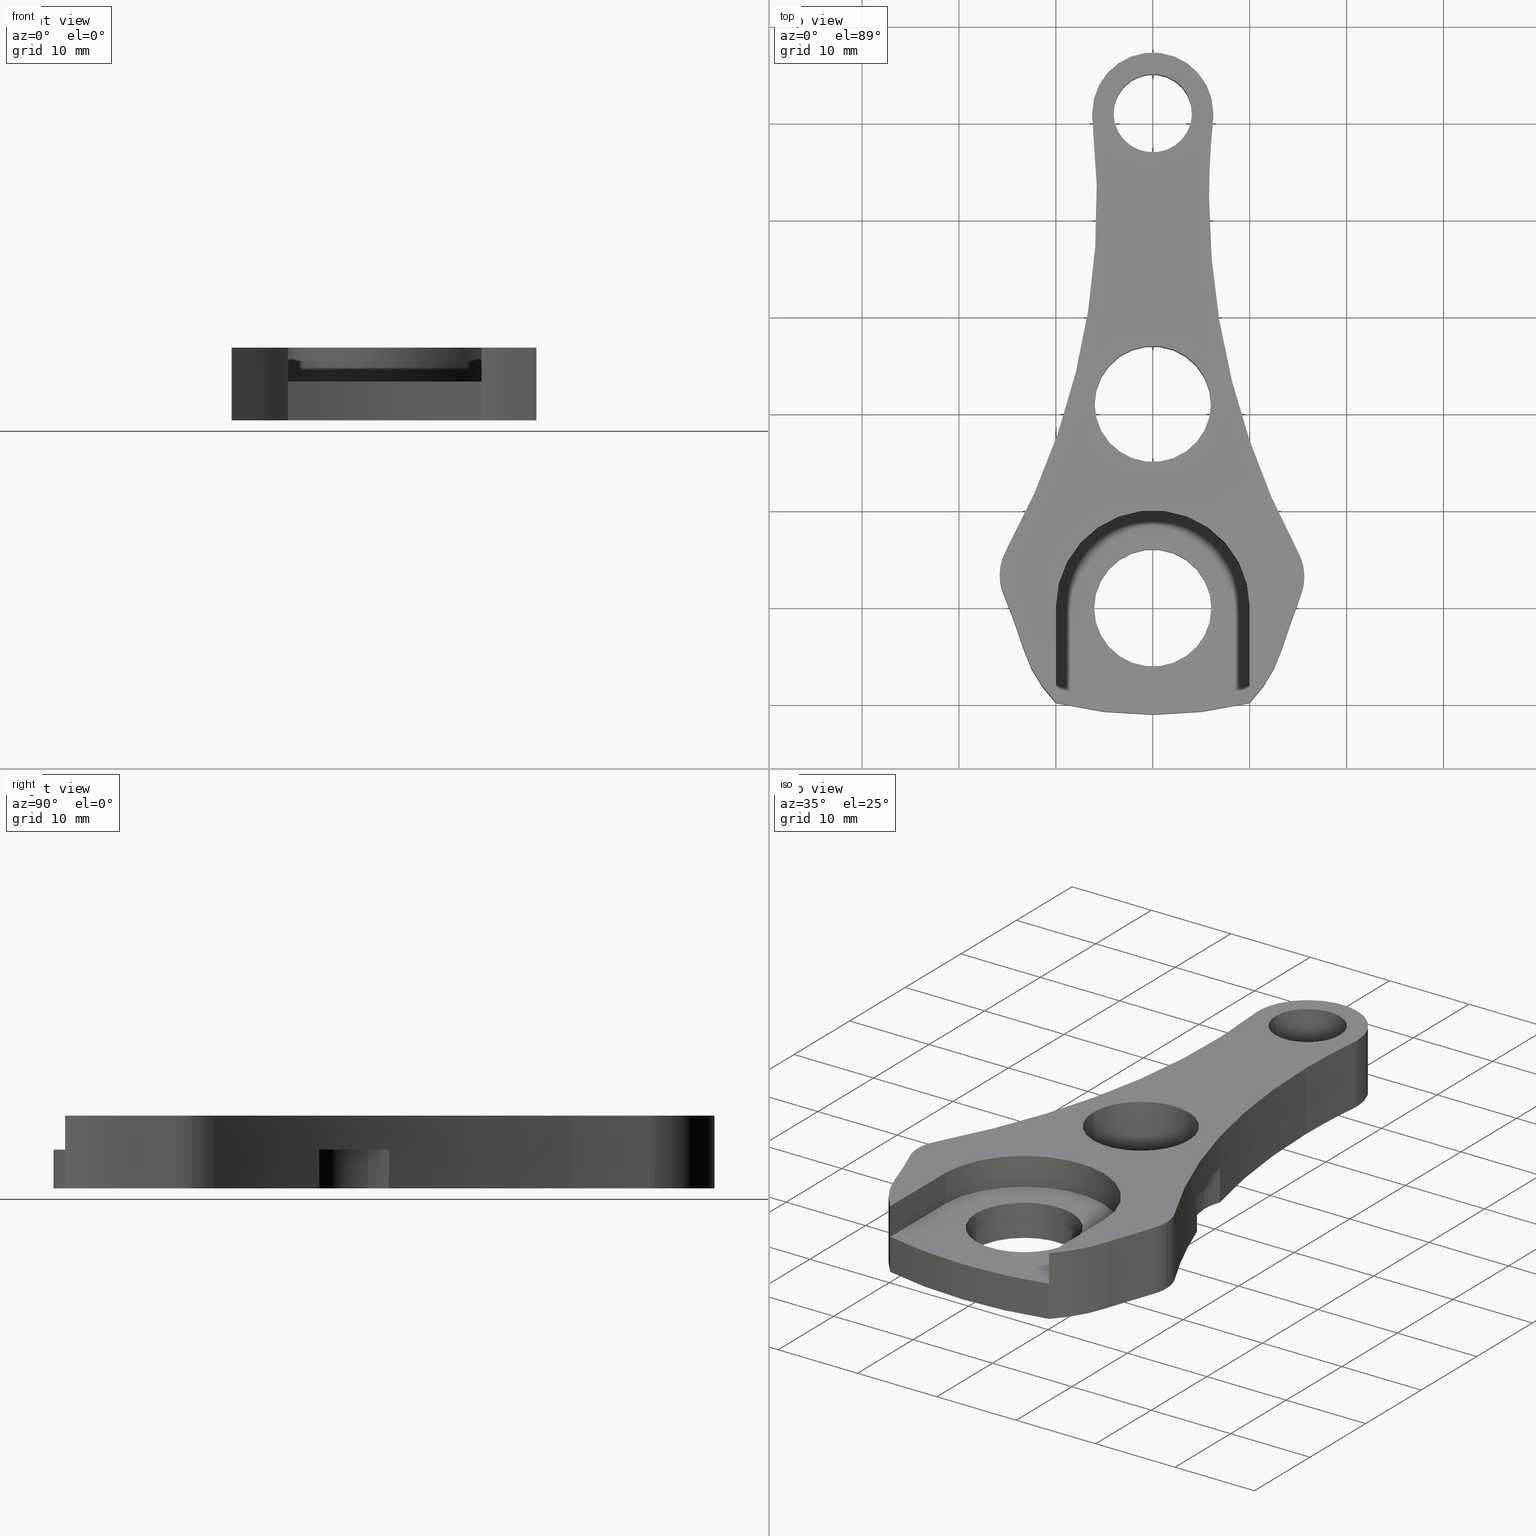
[diagram: canonical four-view strip — front | top / right | iso, engineering-drawing reading convention]
A machine part, canonical four-view strip (front | top / right | iso — engineering-drawing reading convention). The complete STEP part file that produces these views, byte-faithful:
ISO-10303-21;
HEADER;
FILE_DESCRIPTION (( 'STEP AP214' ),
    '1' );
FILE_NAME ('DR4063.STEP',
    '2015-06-29T22:02:47',
    ( 'Accounting' ),
    ( 'Microsoft' ),
    'SwSTEP 2.0',
    'SolidWorks 2015',
    '' );
FILE_SCHEMA (( 'AUTOMOTIVE_DESIGN' ));
ENDSEC;

DATA;
#1 = EDGE_CURVE ( 'NONE', #372, #614, #850, .T. ) ;
#2 = CARTESIAN_POINT ( 'NONE',  ( 0.0000000000000000000, 50.99999999999997900, -4.000000000000003600 ) ) ;
#3 = EDGE_CURVE ( 'NONE', #53, #408, #79, .T. ) ;
#4 = DIRECTION ( 'NONE',  ( -2.627434620609032000E-046, 1.313717310304516000E-046, -1.000000000000000000 ) ) ;
#5 = VERTEX_POINT ( 'NONE', #842 ) ;
#6 = AXIS2_PLACEMENT_3D ( 'NONE', #976, #84, #567 ) ;
#7 = PRODUCT_DEFINITION_CONTEXT ( 'detailed design', #396, 'design' ) ;
#8 = ORIENTED_EDGE ( 'NONE', *, *, #621, .F. ) ;
#9 = DIRECTION ( 'NONE',  ( 1.000000000000000000, -1.885191645205621400E-061, 0.0000000000000000000 ) ) ;
#10 = EDGE_CURVE ( 'NONE', #446, #263, #490, .T. ) ;
#11 = EDGE_LOOP ( 'NONE', ( #658, #308 ) ) ;
#12 = EDGE_LOOP ( 'NONE', ( #888, #758, #624, #150 ) ) ;
#13 = AXIS2_PLACEMENT_3D ( 'NONE', #834, #764, #200 ) ;
#14 = DIRECTION ( 'NONE',  ( -2.627434620609032000E-046, -1.313717310304516000E-046, 1.000000000000000000 ) ) ;
#15 = ORIENTED_EDGE ( 'NONE', *, *, #543, .F. ) ;
#16 = CARTESIAN_POINT ( 'NONE',  ( 9.999999999999994700, 0.0000000000000000000, 0.0000000000000000000 ) ) ;
#17 = FACE_OUTER_BOUND ( 'NONE', #854, .T. ) ;
#18 = CARTESIAN_POINT ( 'NONE',  ( -10.79965953901920800, 3.394109441719334300, 79.07476084379766200 ) ) ;
#19 = MECHANICAL_DESIGN_GEOMETRIC_PRESENTATION_REPRESENTATION (  '', ( #185 ), #81 ) ;
#20 = VECTOR ( 'NONE', #333, 1000.000000000000000 ) ;
#21 = DIRECTION ( 'NONE',  ( 1.000000000000000000, -1.885191645205621400E-061, 2.627434620609032000E-046 ) ) ;
#22 = CARTESIAN_POINT ( 'NONE',  ( -15.17278419832632300, 5.818110414111878000, 79.07476084379766200 ) ) ;
#23 = VECTOR ( 'NONE', #59, 1000.000000000000000 ) ;
#24 = DIRECTION ( 'NONE',  ( -2.627434620609032000E-046, 1.313717310304516000E-046, -1.000000000000000000 ) ) ;
#25 = FACE_OUTER_BOUND ( 'NONE', #979, .T. ) ;
#26 = VERTEX_POINT ( 'NONE', #514 ) ;
#27 = FACE_OUTER_BOUND ( 'NONE', #1001, .T. ) ;
#28 = VERTEX_POINT ( 'NONE', #996 ) ;
#29 = CYLINDRICAL_SURFACE ( 'NONE', #698, 6.000000000000000900 ) ;
#30 = VERTEX_POINT ( 'NONE', #237 ) ;
#31 = DIRECTION ( 'NONE',  ( -1.000000000000000000, 1.885191645205621400E-061, 0.0000000000000000000 ) ) ;
#32 = DIRECTION ( 'NONE',  ( 2.627434620609032000E-046, -1.313717310304516000E-046, 1.000000000000000000 ) ) ;
#33 = EDGE_CURVE ( 'NONE', #405, #263, #540, .T. ) ;
#34 = DIRECTION ( 'NONE',  ( 1.000000000000000000, -1.885191645205621400E-061, 2.627434620609032000E-046 ) ) ;
#35 = EDGE_LOOP ( 'NONE', ( #730, #170, #863, #389 ) ) ;
#36 = ORIENTED_EDGE ( 'NONE', *, *, #1045, .T. ) ;
#37 = AXIS2_PLACEMENT_3D ( 'NONE', #774, #474, #400 ) ;
#38 = DIRECTION ( 'NONE',  ( -1.000000000000000000, 1.885191645205621400E-061, 0.0000000000000000000 ) ) ;
#39 = EDGE_CURVE ( 'NONE', #522, #809, #219, .T. ) ;
#40 = DIRECTION ( 'NONE',  ( 1.000000000000000000, 0.0000000000000000000, 0.0000000000000000000 ) ) ;
#41 = ORIENTED_EDGE ( 'NONE', *, *, #693, .F. ) ;
#42 = AXIS2_PLACEMENT_3D ( 'NONE', #425, #994, #280 ) ;
#43 = ADVANCED_FACE ( 'NONE', ( #708, #538 ), #230, .T. ) ;
#44 = FILL_AREA_STYLE_COLOUR ( '', #454 ) ;
#45 = ORIENTED_EDGE ( 'NONE', *, *, #563, .F. ) ;
#46 = CARTESIAN_POINT ( 'NONE',  ( 0.0000000000000000000, 0.0000000000000000000, 3.500000000000003100 ) ) ;
#47 = ORIENTED_EDGE ( 'NONE', *, *, #1050, .F. ) ;
#48 = ADVANCED_FACE ( 'NONE', ( #647 ), #913, .T. ) ;
#49 = CYLINDRICAL_SURFACE ( 'NONE', #1012, 42.19693845669914400 ) ;
#50 =( GEOMETRIC_REPRESENTATION_CONTEXT ( 3 ) GLOBAL_UNCERTAINTY_ASSIGNED_CONTEXT ( ( #133 ) ) GLOBAL_UNIT_ASSIGNED_CONTEXT ( ( #229, #1059, #572 ) ) REPRESENTATION_CONTEXT ( 'NONE', 'WORKASPACE' ) );
#51 = VERTEX_POINT ( 'NONE', #244 ) ;
#52 = CYLINDRICAL_SURFACE ( 'NONE', #74, 5.000000000000000900 ) ;
#53 = VERTEX_POINT ( 'NONE', #1053 ) ;
#54 = CIRCLE ( 'NONE', #366, 6.049999999999999800 ) ;
#55 = ORIENTED_EDGE ( 'NONE', *, *, #748, .T. ) ;
#56 = AXIS2_PLACEMENT_3D ( 'NONE', #1044, #238, #714 ) ;
#57 = CARTESIAN_POINT ( 'NONE',  ( -10.79965953901920800, 3.394109441719334300, 3.500000000000003100 ) ) ;
#58 = EDGE_CURVE ( 'NONE', #352, #405, #62, .T. ) ;
#59 = DIRECTION ( 'NONE',  ( 2.627434620609032000E-046, -1.313717310304516000E-046, 1.000000000000000000 ) ) ;
#60 = CIRCLE ( 'NONE', #503, 42.19693845669914400 ) ;
#61 = ORIENTED_EDGE ( 'NONE', *, *, #991, .F. ) ;
#62 = CIRCLE ( 'NONE', #234, 76.24851428571427900 ) ;
#63 = LINE ( 'NONE', #766, #720 ) ;
#64 = DIRECTION ( 'NONE',  ( -2.627434620609032000E-046, 1.313717310304516000E-046, -1.000000000000000000 ) ) ;
#65 = ORIENTED_EDGE ( 'NONE', *, *, #644, .T. ) ;
#66 = LINE ( 'NONE', #1016, #948 ) ;
#67 = EDGE_LOOP ( 'NONE', ( #1029, #787, #635, #162, #461, #1071, #88, #189, #890, #952, #375, #65, #835, #336, #992, #309, #508, #570 ) ) ;
#68 = VECTOR ( 'NONE', #479, 1000.000000000000000 ) ;
#69 = DIRECTION ( 'NONE',  ( -2.627434620609032000E-046, 1.313717310304516000E-046, -1.000000000000000000 ) ) ;
#70 = EDGE_CURVE ( 'NONE', #1000, #772, #1041, .T. ) ;
#71 = DIRECTION ( 'NONE',  ( -1.000000000000000000, 1.885191645205621700E-061, 0.0000000000000000000 ) ) ;
#72 = ADVANCED_FACE ( 'NONE', ( #314 ), #923, .T. ) ;
#73 = DIRECTION ( 'NONE',  ( -2.627434620609032000E-046, 1.313717310304516000E-046, -1.000000000000000000 ) ) ;
#74 = AXIS2_PLACEMENT_3D ( 'NONE', #18, #24, #447 ) ;
#75 = ORIENTED_EDGE ( 'NONE', *, *, #583, .F. ) ;
#76 = ADVANCED_FACE ( 'NONE', ( #750 ), #92, .F. ) ;
#77 = LINE ( 'NONE', #116, #304 ) ;
#78 = VERTEX_POINT ( 'NONE', #739 ) ;
#79 = CIRCLE ( 'NONE', #501, 77.97056827778322900 ) ;
#80 = PLANE ( 'NONE',  #886 ) ;
#81 =( GEOMETRIC_REPRESENTATION_CONTEXT ( 3 ) GLOBAL_UNCERTAINTY_ASSIGNED_CONTEXT ( ( #513 ) ) GLOBAL_UNIT_ASSIGNED_CONTEXT ( ( #907, #529, #108 ) ) REPRESENTATION_CONTEXT ( 'NONE', 'WORKASPACE' ) );
#82 = ORIENTED_EDGE ( 'NONE', *, *, #449, .F. ) ;
#83 = VERTEX_POINT ( 'NONE', #825 ) ;
#84 = DIRECTION ( 'NONE',  ( -2.627434620609032000E-046, 1.313717310304516000E-046, -1.000000000000000000 ) ) ;
#85 = EDGE_CURVE ( 'NONE', #5, #735, #599, .T. ) ;
#86 = CARTESIAN_POINT ( 'NONE',  ( 0.0000000000000000000, 50.99999999999997900, 79.07476084379766200 ) ) ;
#87 = CARTESIAN_POINT ( 'NONE',  ( 8.113838518697791700, 23.58664256614016700, -2.000000000000001800 ) ) ;
#88 = ORIENTED_EDGE ( 'NONE', *, *, #360, .T. ) ;
#89 = CARTESIAN_POINT ( 'NONE',  ( -6.250000000000001800, 50.99999999999997900, 79.07476084379766200 ) ) ;
#90 = EDGE_CURVE ( 'NONE', #470, #256, #873, .T. ) ;
#91 = ORIENTED_EDGE ( 'NONE', *, *, #1050, .T. ) ;
#92 = CYLINDRICAL_SURFACE ( 'NONE', #957, 4.049999999999998900 ) ;
#93 = CARTESIAN_POINT ( 'NONE',  ( 6.049999999999999800, 7.409113134841486500E-016, -1.589597945468464200E-045 ) ) ;
#94 = ORIENTED_EDGE ( 'NONE', *, *, #158, .T. ) ;
#95 = CARTESIAN_POINT ( 'NONE',  ( 83.78042673124230100, 42.40091762083374500, 3.500000000000003100 ) ) ;
#96 = VERTEX_POINT ( 'NONE', #487 ) ;
#97 = AXIS2_PLACEMENT_3D ( 'NONE', #121, #687, #615 ) ;
#98 =( NAMED_UNIT ( * ) SI_UNIT ( $, .STERADIAN. ) SOLID_ANGLE_UNIT ( ) );
#99 = CIRCLE ( 'NONE', #718, 6.250000000000001800 ) ;
#100 = CARTESIAN_POINT ( 'NONE',  ( 13.34035438566384700, -4.246756982086319400, -4.000000000000003600 ) ) ;
#101 = CARTESIAN_POINT ( 'NONE',  ( 0.0000000000000000000, 0.0000000000000000000, -4.000000000000003600 ) ) ;
#102 = AXIS2_PLACEMENT_3D ( 'NONE', #911, #666, #9 ) ;
#103 = DIRECTION ( 'NONE',  ( 1.000000000000000000, -1.885191645205621400E-061, 2.627434620609032000E-046 ) ) ;
#104 = ORIENTED_EDGE ( 'NONE', *, *, #187, .T. ) ;
#105 = ORIENTED_EDGE ( 'NONE', *, *, #208, .F. ) ;
#106 = PLANE ( 'NONE',  #634 ) ;
#107 = CYLINDRICAL_SURFACE ( 'NONE', #880, 76.24851428571432200 ) ;
#108 =( NAMED_UNIT ( * ) SI_UNIT ( $, .STERADIAN. ) SOLID_ANGLE_UNIT ( ) );
#109 = ORIENTED_EDGE ( 'NONE', *, *, #422, .F. ) ;
#110 = VECTOR ( 'NONE', #216, 1000.000000000000000 ) ;
#111 = DIRECTION ( 'NONE',  ( 1.000000000000000000, 0.0000000000000000000, 0.0000000000000000000 ) ) ;
#112 = ORIENTED_EDGE ( 'NONE', *, *, #401, .F. ) ;
#113 = DIRECTION ( 'NONE',  ( -2.627434620609032000E-046, 1.313717310304516000E-046, -1.000000000000000000 ) ) ;
#114 = VERTEX_POINT ( 'NONE', #797 ) ;
#115 = CARTESIAN_POINT ( 'NONE',  ( -10.79965953901920800, 3.394109441719334300, 3.500000000000003100 ) ) ;
#116 = CARTESIAN_POINT ( 'NONE',  ( 9.999999999999968000, -9.797958971132725700, 79.07476084379766200 ) ) ;
#117 = AXIS2_PLACEMENT_3D ( 'NONE', #57, #228, #702 ) ;
#118 = DIRECTION ( 'NONE',  ( -2.627434620609032000E-046, 1.313717310304516000E-046, -1.000000000000000000 ) ) ;
#119 = DIRECTION ( 'NONE',  ( -1.000000000000000000, 0.0000000000000000000, 0.0000000000000000000 ) ) ;
#120 = DIRECTION ( 'NONE',  ( -2.627434620609032000E-046, 1.313717310304516000E-046, -1.000000000000000000 ) ) ;
#121 = CARTESIAN_POINT ( 'NONE',  ( 13.80331697380615600, 21.38668008717430200, 0.0000000000000000000 ) ) ;
#122 = DIRECTION ( 'NONE',  ( -2.627434620609032000E-046, 1.313717310304516000E-046, -1.000000000000000000 ) ) ;
#123 = EDGE_CURVE ( 'NONE', #471, #446, #264, .T. ) ;
#124 = CYLINDRICAL_SURFACE ( 'NONE', #927, 6.000000000000000900 ) ;
#125 = ORIENTED_EDGE ( 'NONE', *, *, #595, .F. ) ;
#126 = CARTESIAN_POINT ( 'NONE',  ( 7.703316973806157500, 21.38668008717430200, -4.000000000000003600 ) ) ;
#127 = CARTESIAN_POINT ( 'NONE',  ( -10.00000000000002300, -9.797958971132711500, 0.0000000000000000000 ) ) ;
#128 = AXIS2_PLACEMENT_3D ( 'NONE', #895, #411, #494 ) ;
#129 = CARTESIAN_POINT ( 'NONE',  ( 13.80331697380615600, 21.38668008717430200, 0.0000000000000000000 ) ) ;
#130 = EDGE_CURVE ( 'NONE', #51, #464, #619, .T. ) ;
#131 = CARTESIAN_POINT ( 'NONE',  ( 10.63904025362763600, 3.228825712556809600, 3.500000000000003100 ) ) ;
#132 = DIRECTION ( 'NONE',  ( 2.627434620609032000E-046, -1.313717310304516000E-046, 1.000000000000000000 ) ) ;
#133 = UNCERTAINTY_MEASURE_WITH_UNIT (LENGTH_MEASURE( 1.000000000000000100E-005 ), #229, 'distance_accuracy_value', 'NONE');
#134 = VERTEX_POINT ( 'NONE', #93 ) ;
#135 = FACE_OUTER_BOUND ( 'NONE', #833, .T. ) ;
#136 = ORIENTED_EDGE ( 'NONE', *, *, #426, .T. ) ;
#137 = VERTEX_POINT ( 'NONE', #816 ) ;
#138 = ORIENTED_EDGE ( 'NONE', *, *, #262, .F. ) ;
#139 = CARTESIAN_POINT ( 'NONE',  ( 83.78042673124230100, 42.40091762083374500, -4.000000000000003600 ) ) ;
#140 = ORIENTED_EDGE ( 'NONE', *, *, #305, .F. ) ;
#141 = EDGE_CURVE ( 'NONE', #188, #1026, #682, .T. ) ;
#142 = ADVANCED_FACE ( 'NONE', ( #1064, #695, #972 ), #106, .T. ) ;
#143 = FILL_AREA_STYLE_COLOUR ( '', #1017 ) ;
#144 = AXIS2_PLACEMENT_3D ( 'NONE', #483, #69, #71 ) ;
#145 = CARTESIAN_POINT ( 'NONE',  ( 9.999999999999968000, -9.797958971132725700, 3.500000000000003100 ) ) ;
#146 = AXIS2_PLACEMENT_3D ( 'NONE', #754, #592, #517 ) ;
#147 = FACE_OUTER_BOUND ( 'NONE', #220, .T. ) ;
#148 = EDGE_CURVE ( 'NONE', #263, #378, #206, .T. ) ;
#149 = DIRECTION ( 'NONE',  ( -2.627434620609032000E-046, 1.313717310304516000E-046, -1.000000000000000000 ) ) ;
#150 = ORIENTED_EDGE ( 'NONE', *, *, #346, .T. ) ;
#151 = EDGE_LOOP ( 'NONE', ( #980, #728 ) ) ;
#152 = DIRECTION ( 'NONE',  ( 1.000000000000000000, 0.0000000000000000000, 0.0000000000000000000 ) ) ;
#153 = EDGE_CURVE ( 'NONE', #471, #378, #783, .T. ) ;
#154 = CARTESIAN_POINT ( 'NONE',  ( -13.34035438566384700, -4.246756982086305100, 3.500000000000003100 ) ) ;
#155 = DIRECTION ( 'NONE',  ( -2.627434620609032000E-046, 1.313717310304516000E-046, -1.000000000000000000 ) ) ;
#156 = DIRECTION ( 'NONE',  ( -2.627434620609032000E-046, -1.313717310304516000E-046, 1.000000000000000000 ) ) ;
#157 = AXIS2_PLACEMENT_3D ( 'NONE', #129, #217, #623 ) ;
#158 = EDGE_CURVE ( 'NONE', #497, #96, #721, .T. ) ;
#159 = PRODUCT_CONTEXT ( 'NONE', #409, 'mechanical' ) ;
#160 = DIRECTION ( 'NONE',  ( -2.627434620609032000E-046, -1.313717310304516000E-046, 1.000000000000000000 ) ) ;
#161 = EDGE_LOOP ( 'NONE', ( #387, #41, #94, #91 ) ) ;
#162 = ORIENTED_EDGE ( 'NONE', *, *, #523, .T. ) ;
#163 = AXIS2_PLACEMENT_3D ( 'NONE', #860, #175, #38 ) ;
#164 = CARTESIAN_POINT ( 'NONE',  ( 15.63904025362763600, 3.228825712556809600, -4.000000000000003600 ) ) ;
#165 = CIRCLE ( 'NONE', #128, 5.000000000000000900 ) ;
#166 = ORIENTED_EDGE ( 'NONE', *, *, #148, .F. ) ;
#167 = ORIENTED_EDGE ( 'NONE', *, *, #255, .F. ) ;
#168 = DIRECTION ( 'NONE',  ( 2.627434620609032000E-046, -1.313717310304516000E-046, 1.000000000000000000 ) ) ;
#169 = CARTESIAN_POINT ( 'NONE',  ( 0.0000000000000000000, 0.0000000000000000000, -29.00000000000002500 ) ) ;
#170 = ORIENTED_EDGE ( 'NONE', *, *, #861, .T. ) ;
#171 = AXIS2_PLACEMENT_3D ( 'NONE', #722, #974, #403 ) ;
#172 = ORIENTED_EDGE ( 'NONE', *, *, #85, .F. ) ;
#173 = ORIENTED_EDGE ( 'NONE', *, *, #313, .T. ) ;
#174 = FACE_OUTER_BOUND ( 'NONE', #177, .T. ) ;
#175 = DIRECTION ( 'NONE',  ( -2.627434620609032000E-046, 1.313717310304516000E-046, -1.000000000000000000 ) ) ;
#176 = ORIENTED_EDGE ( 'NONE', *, *, #769, .F. ) ;
#177 = EDGE_LOOP ( 'NONE', ( #909, #235, #696, #373 ) ) ;
#178 = VERTEX_POINT ( 'NONE', #460 ) ;
#179 = DIRECTION ( 'NONE',  ( -3.363939994101538300E-015, -1.000000000000000000, 1.313717310304516000E-046 ) ) ;
#180 = VECTOR ( 'NONE', #435, 1000.000000000000000 ) ;
#181 = CARTESIAN_POINT ( 'NONE',  ( -85.99622595364832000, -27.37596486898382900, -4.000000000000003600 ) ) ;
#182 = ORIENTED_EDGE ( 'NONE', *, *, #39, .T. ) ;
#183 = CARTESIAN_POINT ( 'NONE',  ( 0.0000000000000000000, 31.19693845669914400, 0.0000000000000000000 ) ) ;
#184 = DIRECTION ( 'NONE',  ( -2.627434620609032000E-046, 1.313717310304516000E-046, -1.000000000000000000 ) ) ;
#185 = STYLED_ITEM ( 'NONE', ( #760 ), #480 ) ;
#186 = CARTESIAN_POINT ( 'NONE',  ( 42.99811297682415300, -13.68798243449191600, -4.000000000000003600 ) ) ;
#187 = EDGE_CURVE ( 'NONE', #790, #134, #394, .T. ) ;
#188 = VERTEX_POINT ( 'NONE', #620 ) ;
#189 = ORIENTED_EDGE ( 'NONE', *, *, #215, .T. ) ;
#190 = DIRECTION ( 'NONE',  ( 1.000000000000000000, 0.0000000000000000000, 0.0000000000000000000 ) ) ;
#191 = SHAPE_DEFINITION_REPRESENTATION ( #433, #480 ) ;
#192 = ORIENTED_EDGE ( 'NONE', *, *, #70, .F. ) ;
#193 = ORIENTED_EDGE ( 'NONE', *, *, #153, .T. ) ;
#194 = CARTESIAN_POINT ( 'NONE',  ( 6.250000000000001800, 50.99999999999997900, 3.500000000000003100 ) ) ;
#195 = AXIS2_PLACEMENT_3D ( 'NONE', #331, #296, #276 ) ;
#196 = DIRECTION ( 'NONE',  ( 2.627434620609032000E-046, -1.313717310304516000E-046, 1.000000000000000000 ) ) ;
#197 = DIRECTION ( 'NONE',  ( 1.000000000000000000, 0.0000000000000000000, 0.0000000000000000000 ) ) ;
#198 = PRODUCT ( 'DR4063', 'DR4063', '', ( #159 ) ) ;
#199 = CARTESIAN_POINT ( 'NONE',  ( 0.0000000000000000000, 20.99999999999997900, -4.000000000000003600 ) ) ;
#200 = DIRECTION ( 'NONE',  ( -1.000000000000000000, 0.0000000000000000000, 0.0000000000000000000 ) ) ;
#201 = CARTESIAN_POINT ( 'NONE',  ( 15.63904025362763600, 3.228825712556809600, 79.07476084379766200 ) ) ;
#202 = DIRECTION ( 'NONE',  ( 2.627434620609032000E-046, -1.313717310304516000E-046, 1.000000000000000000 ) ) ;
#203 = AXIS2_PLACEMENT_3D ( 'NONE', #1024, #949, #224 ) ;
#204 = EDGE_CURVE ( 'NONE', #614, #293, #60, .T. ) ;
#205 = CARTESIAN_POINT ( 'NONE',  ( -10.00000000000000900, -9.797958971132697300, 79.07476084379766200 ) ) ;
#206 = CIRCLE ( 'NONE', #678, 5.000000000000000900 ) ;
#207 = DIRECTION ( 'NONE',  ( 1.000000000000000000, 0.0000000000000000000, 0.0000000000000000000 ) ) ;
#208 = EDGE_CURVE ( 'NONE', #352, #464, #618, .T. ) ;
#209 = ORIENTED_EDGE ( 'NONE', *, *, #141, .F. ) ;
#210 = CIRCLE ( 'NONE', #42, 4.049999999999998900 ) ;
#211 = CARTESIAN_POINT ( 'NONE',  ( 4.049999999999998900, 50.99999999999997900, -4.000000000000003600 ) ) ;
#212 = EDGE_LOOP ( 'NONE', ( #602, #889, #430, #838 ) ) ;
#213 = EDGE_LOOP ( 'NONE', ( #1066, #646, #246, #112, #36, #851, #307, #45, #771, #125, #779, #639, #568, #931, #8, #209, #560, #496, #989 ) ) ;
#214 = DIRECTION ( 'NONE',  ( 2.627434620609032000E-046, -1.313717310304516000E-046, 1.000000000000000000 ) ) ;
#215 = EDGE_CURVE ( 'NONE', #1042, #137, #966, .T. ) ;
#216 = DIRECTION ( 'NONE',  ( -2.627434620609032000E-046, 1.313717310304516000E-046, -1.000000000000000000 ) ) ;
#217 = DIRECTION ( 'NONE',  ( -2.627434620609032000E-046, 1.313717310304516000E-046, -1.000000000000000000 ) ) ;
#218 = CARTESIAN_POINT ( 'NONE',  ( 13.34035438566384700, -4.246756982086319400, 3.500000000000003100 ) ) ;
#219 = LINE ( 'NONE', #916, #68 ) ;
#220 = EDGE_LOOP ( 'NONE', ( #1003, #670, #982, #311 ) ) ;
#221 = DIRECTION ( 'NONE',  ( 2.627434620609032000E-046, -1.313717310304516000E-046, 1.000000000000000000 ) ) ;
#222 = ORIENTED_EDGE ( 'NONE', *, *, #883, .T. ) ;
#223 = CARTESIAN_POINT ( 'NONE',  ( 10.26712372403496000, 16.41623369874271900, 0.0000000000000000000 ) ) ;
#224 = DIRECTION ( 'NONE',  ( -1.000000000000000000, 0.0000000000000000000, 0.0000000000000000000 ) ) ;
#225 = AXIS2_PLACEMENT_3D ( 'NONE', #181, #917, #465 ) ;
#226 = DIRECTION ( 'NONE',  ( 2.627434620609032000E-046, -1.313717310304516000E-046, 1.000000000000000000 ) ) ;
#227 = ADVANCED_FACE ( 'NONE', ( #17 ), #632, .F. ) ;
#228 = DIRECTION ( 'NONE',  ( 2.627434620609032000E-046, -1.313717310304516000E-046, 1.000000000000000000 ) ) ;
#229 =( LENGTH_UNIT ( ) NAMED_UNIT ( * ) SI_UNIT ( .MILLI., .METRE. ) );
#230 = PLANE ( 'NONE',  #286 ) ;
#231 = VECTOR ( 'NONE', #607, 1000.000000000000000 ) ;
#232 = AXIS2_PLACEMENT_3D ( 'NONE', #665, #961, #511 ) ;
#233 = ORIENTED_EDGE ( 'NONE', *, *, #637, .T. ) ;
#234 = AXIS2_PLACEMENT_3D ( 'NONE', #724, #326, #810 ) ;
#235 = ORIENTED_EDGE ( 'NONE', *, *, #829, .T. ) ;
#236 = LINE ( 'NONE', #767, #485 ) ;
#237 = CARTESIAN_POINT ( 'NONE',  ( -9.999999999999994700, 0.0000000000000000000, 3.500000000000003100 ) ) ;
#238 = DIRECTION ( 'NONE',  ( 2.627434620609032000E-046, -1.313717310304516000E-046, 1.000000000000000000 ) ) ;
#239 = CARTESIAN_POINT ( 'NONE',  ( -154.9177525093064400, 59.93815801378288200, -4.000000000000003600 ) ) ;
#240 = CIRCLE ( 'NONE', #330, 10.00000000000000000 ) ;
#241 = FACE_OUTER_BOUND ( 'NONE', #398, .T. ) ;
#242 = CARTESIAN_POINT ( 'NONE',  ( 6.000000000000000900, 20.99999999999997900, -4.000000000000003600 ) ) ;
#243 = ORIENTED_EDGE ( 'NONE', *, *, #476, .T. ) ;
#244 = CARTESIAN_POINT ( 'NONE',  ( 9.999999999999968000, -9.797958971132725700, -4.000000000000003600 ) ) ;
#245 = CARTESIAN_POINT ( 'NONE',  ( -6.213050314456403100, 50.32139423076921500, -4.000000000000003600 ) ) ;
#246 = ORIENTED_EDGE ( 'NONE', *, *, #769, .T. ) ;
#247 = ORIENTED_EDGE ( 'NONE', *, *, #320, .T. ) ;
#248 = DIRECTION ( 'NONE',  ( 1.000000000000000000, 4.086064354224496900E-014, 0.0000000000000000000 ) ) ;
#249 = DIRECTION ( 'NONE',  ( 1.000000000000000000, 0.0000000000000000000, 0.0000000000000000000 ) ) ;
#250 = AXIS2_PLACEMENT_3D ( 'NONE', #1047, #475, #289 ) ;
#251 = ORIENTED_EDGE ( 'NONE', *, *, #204, .F. ) ;
#252 = ORIENTED_EDGE ( 'NONE', *, *, #422, .T. ) ;
#253 = AXIS2_PLACEMENT_3D ( 'NONE', #169, #562, #717 ) ;
#254 = DIRECTION ( 'NONE',  ( 1.000000000000000000, 3.556183125752454500E-015, 0.0000000000000000000 ) ) ;
#255 = EDGE_CURVE ( 'NONE', #28, #828, #710, .T. ) ;
#256 = VERTEX_POINT ( 'NONE', #655 ) ;
#257 = DIRECTION ( 'NONE',  ( 2.627434620609032000E-046, -1.313717310304516000E-046, 1.000000000000000000 ) ) ;
#258 = ADVANCED_FACE ( 'NONE', ( #898 ), #821, .T. ) ;
#259 = VECTOR ( 'NONE', #528, 1000.000000000000000 ) ;
#260 = CARTESIAN_POINT ( 'NONE',  ( 9.999999999999968000, -9.797958971132725700, 3.500000000000003100 ) ) ;
#261 = DIRECTION ( 'NONE',  ( 1.000000000000000000, 0.0000000000000000000, 0.0000000000000000000 ) ) ;
#262 = EDGE_CURVE ( 'NONE', #828, #319, #436, .T. ) ;
#263 = VERTEX_POINT ( 'NONE', #369 ) ;
#264 = CIRCLE ( 'NONE', #899, 5.000000000000000900 ) ;
#265 = CARTESIAN_POINT ( 'NONE',  ( -6.049999999999999800, 1.140540945349400900E-060, 79.07476084379766200 ) ) ;
#266 = LINE ( 'NONE', #357, #706 ) ;
#267 = ORIENTED_EDGE ( 'NONE', *, *, #831, .F. ) ;
#268 = LINE ( 'NONE', #1004, #376 ) ;
#269 = VERTEX_POINT ( 'NONE', #521 ) ;
#270 = CARTESIAN_POINT ( 'NONE',  ( 9.999999999999968000, -9.797958971132725700, 0.0000000000000000000 ) ) ;
#271 = DIRECTION ( 'NONE',  ( -2.627434620609032000E-046, 1.313717310304516000E-046, -1.000000000000000000 ) ) ;
#272 = AXIS2_PLACEMENT_3D ( 'NONE', #870, #951, #388 ) ;
#273 = DIRECTION ( 'NONE',  ( 0.0000000000000000000, 0.0000000000000000000, 1.000000000000000000 ) ) ;
#274 = EDGE_LOOP ( 'NONE', ( #875, #663, #600, #138 ) ) ;
#275 = CARTESIAN_POINT ( 'NONE',  ( -10.79965953901920800, 3.394109441719334300, 79.07476084379766200 ) ) ;
#276 = DIRECTION ( 'NONE',  ( -1.000000000000000000, 1.885191645205621400E-061, -2.627434620609032000E-046 ) ) ;
#277 = ORIENTED_EDGE ( 'NONE', *, *, #719, .F. ) ;
#278 = PRESENTATION_STYLE_ASSIGNMENT (( #990 ) ) ;
#279 = ORIENTED_EDGE ( 'NONE', *, *, #473, .F. ) ;
#280 = DIRECTION ( 'NONE',  ( 1.000000000000000000, 0.0000000000000000000, 0.0000000000000000000 ) ) ;
#281 = ORIENTED_EDGE ( 'NONE', *, *, #705, .T. ) ;
#282 = DIRECTION ( 'NONE',  ( 1.000000000000000000, 0.0000000000000000000, 0.0000000000000000000 ) ) ;
#283 = LINE ( 'NONE', #753, #259 ) ;
#284 = AXIS2_PLACEMENT_3D ( 'NONE', #936, #922, #358 ) ;
#285 = FACE_OUTER_BOUND ( 'NONE', #823, .T. ) ;
#286 = AXIS2_PLACEMENT_3D ( 'NONE', #645, #156, #324 ) ;
#287 = CARTESIAN_POINT ( 'NONE',  ( 0.0000000000000000000, 0.0000000000000000000, 0.0000000000000000000 ) ) ;
#288 = VECTOR ( 'NONE', #410, 1000.000000000000000 ) ;
#289 = DIRECTION ( 'NONE',  ( 1.000000000000000000, 0.0000000000000000000, 0.0000000000000000000 ) ) ;
#290 = EDGE_CURVE ( 'NONE', #941, #910, #268, .T. ) ;
#291 = DIRECTION ( 'NONE',  ( 1.000000000000000000, 0.0000000000000000000, 0.0000000000000000000 ) ) ;
#292 = CIRCLE ( 'NONE', #633, 13.99999999999998800 ) ;
#293 = VERTEX_POINT ( 'NONE', #127 ) ;
#294 = VECTOR ( 'NONE', #221, 1000.000000000000000 ) ;
#295 = CARTESIAN_POINT ( 'NONE',  ( 13.80331697380615600, 21.38668008717430200, -4.000000000000003600 ) ) ;
#296 = DIRECTION ( 'NONE',  ( 2.627434620609032000E-046, 1.313717310304516000E-046, -1.000000000000000000 ) ) ;
#297 = CARTESIAN_POINT ( 'NONE',  ( 4.049999999999998900, 50.99999999999997900, 3.500000000000003100 ) ) ;
#298 = EDGE_CURVE ( 'NONE', #137, #1026, #616, .T. ) ;
#299 = DIRECTION ( 'NONE',  ( -2.627434620609032000E-046, 1.313717310304516000E-046, -1.000000000000000000 ) ) ;
#300 = DIRECTION ( 'NONE',  ( -2.627434620609032000E-046, 1.313717310304516000E-046, -1.000000000000000000 ) ) ;
#301 = ADVANCED_FACE ( 'NONE', ( #983 ), #1002, .F. ) ;
#302 = AXIS2_PLACEMENT_3D ( 'NONE', #364, #965, #443 ) ;
#303 = DIRECTION ( 'NONE',  ( -2.627434620609032000E-046, 1.313717310304516000E-046, -1.000000000000000000 ) ) ;
#304 = VECTOR ( 'NONE', #64, 1000.000000000000000 ) ;
#305 = EDGE_CURVE ( 'NONE', #114, #809, #561, .T. ) ;
#306 = ORIENTED_EDGE ( 'NONE', *, *, #713, .T. ) ;
#307 = ORIENTED_EDGE ( 'NONE', *, *, #819, .F. ) ;
#308 = ORIENTED_EDGE ( 'NONE', *, *, #456, .T. ) ;
#309 = ORIENTED_EDGE ( 'NONE', *, *, #532, .F. ) ;
#310 = CARTESIAN_POINT ( 'NONE',  ( 6.250000000000001800, 50.99999999999997900, 79.07476084379766200 ) ) ;
#311 = ORIENTED_EDGE ( 'NONE', *, *, #613, .F. ) ;
#312 = AXIS2_PLACEMENT_3D ( 'NONE', #101, #202, #327 ) ;
#313 = EDGE_CURVE ( 'NONE', #589, #53, #384, .T. ) ;
#314 = FACE_OUTER_BOUND ( 'NONE', #35, .T. ) ;
#315 = EDGE_CURVE ( 'NONE', #293, #671, #862, .T. ) ;
#316 = CARTESIAN_POINT ( 'NONE',  ( 13.34035438566384700, -4.246756982086319400, 79.07476084379766200 ) ) ;
#317 = CARTESIAN_POINT ( 'NONE',  ( 10.26712372403500200, 16.41623369874259500, -4.000000000000003600 ) ) ;
#318 = CARTESIAN_POINT ( 'NONE',  ( -15.79965953901920800, 3.394109441719334300, -4.000000000000003600 ) ) ;
#319 = VERTEX_POINT ( 'NONE', #995 ) ;
#320 = EDGE_CURVE ( 'NONE', #78, #188, #587, .T. ) ;
#321 = LINE ( 'NONE', #605, #469 ) ;
#322 = DIRECTION ( 'NONE',  ( -2.627434620609032000E-046, 1.313717310304516000E-046, -1.000000000000000000 ) ) ;
#323 = FACE_OUTER_BOUND ( 'NONE', #692, .T. ) ;
#324 = DIRECTION ( 'NONE',  ( 1.000000000000000000, -1.885191645205621400E-061, 2.627434620609032000E-046 ) ) ;
#325 = ADVANCED_FACE ( 'NONE', ( #908 ), #482, .F. ) ;
#326 = DIRECTION ( 'NONE',  ( -2.627434620609032000E-046, 1.313717310304516000E-046, -1.000000000000000000 ) ) ;
#327 = DIRECTION ( 'NONE',  ( 1.000000000000000000, -1.885191645205621400E-061, 0.0000000000000000000 ) ) ;
#328 = ADVANCED_FACE ( 'NONE', ( #1051 ), #943, .T. ) ;
#329 = ORIENTED_EDGE ( 'NONE', *, *, #379, .F. ) ;
#330 = AXIS2_PLACEMENT_3D ( 'NONE', #579, #544, #21 ) ;
#331 = CARTESIAN_POINT ( 'NONE',  ( 13.80331697380615600, 21.38668008717430200, 0.0000000000000000000 ) ) ;
#332 = VERTEX_POINT ( 'NONE', #694 ) ;
#333 = DIRECTION ( 'NONE',  ( -2.627434620609032000E-046, 1.313717310304516000E-046, -1.000000000000000000 ) ) ;
#334 = VERTEX_POINT ( 'NONE', #780 ) ;
#335 = ORIENTED_EDGE ( 'NONE', *, *, #290, .F. ) ;
#336 = ORIENTED_EDGE ( 'NONE', *, *, #664, .F. ) ;
#337 = ADVANCED_FACE ( 'NONE', ( #285 ), #1018, .F. ) ;
#338 = CARTESIAN_POINT ( 'NONE',  ( 14.31060865489089400, -1.395044883831790600, 79.07476084379766200 ) ) ;
#339 = AXIS2_PLACEMENT_3D ( 'NONE', #590, #155, #564 ) ;
#340 = LINE ( 'NONE', #205, #803 ) ;
#341 = AXIS2_PLACEMENT_3D ( 'NONE', #903, #416, #499 ) ;
#342 = DIRECTION ( 'NONE',  ( -2.627434620609032000E-046, 1.313717310304516000E-046, -1.000000000000000000 ) ) ;
#343 = ORIENTED_EDGE ( 'NONE', *, *, #534, .F. ) ;
#344 = AXIS2_PLACEMENT_3D ( 'NONE', #537, #1057, #353 ) ;
#345 = CARTESIAN_POINT ( 'NONE',  ( 0.0000000000000000000, 50.99999999999997900, 3.500000000000003100 ) ) ;
#346 = EDGE_CURVE ( 'NONE', #405, #902, #946, .T. ) ;
#347 = CYLINDRICAL_SURFACE ( 'NONE', #918, 5.000000000000000900 ) ;
#348 = CIRCLE ( 'NONE', #552, 6.000000000000000900 ) ;
#349 = DIRECTION ( 'NONE',  ( 1.000000000000000000, 0.0000000000000000000, 2.627434620609031600E-046 ) ) ;
#350 = CIRCLE ( 'NONE', #492, 14.00000000000000200 ) ;
#351 = LINE ( 'NONE', #89, #756 ) ;
#352 = VERTEX_POINT ( 'NONE', #218 ) ;
#353 = DIRECTION ( 'NONE',  ( 3.363939994101538300E-015, 1.000000000000000000, -1.313717310304516000E-046 ) ) ;
#354 = CARTESIAN_POINT ( 'NONE',  ( -85.99622595364832000, -27.37596486898382900, 3.500000000000003100 ) ) ;
#355 = ORIENTED_EDGE ( 'NONE', *, *, #130, .T. ) ;
#356 = FACE_OUTER_BOUND ( 'NONE', #212, .T. ) ;
#357 = CARTESIAN_POINT ( 'NONE',  ( 6.217337139583195300, 50.36186295142859800, 79.07476084379766200 ) ) ;
#358 = DIRECTION ( 'NONE',  ( 1.000000000000000000, 0.0000000000000000000, 0.0000000000000000000 ) ) ;
#359 = ORIENTED_EDGE ( 'NONE', *, *, #640, .F. ) ;
#360 = EDGE_CURVE ( 'NONE', #669, #1042, #975, .T. ) ;
#361 = UNCERTAINTY_MEASURE_WITH_UNIT (LENGTH_MEASURE( 1.000000000000000100E-005 ), #839, 'distance_accuracy_value', 'NONE');
#362 = CARTESIAN_POINT ( 'NONE',  ( 0.0000000000000000000, 31.19693845669914400, 79.07476084379766200 ) ) ;
#363 = DIRECTION ( 'NONE',  ( -2.627434620609032000E-046, 1.313717310304516000E-046, -1.000000000000000000 ) ) ;
#364 = CARTESIAN_POINT ( 'NONE',  ( -154.9177525093064400, 59.93815801378288200, 79.07476084379766200 ) ) ;
#365 = CARTESIAN_POINT ( 'NONE',  ( 6.217337139583195300, 50.36186295142859800, -4.000000000000003600 ) ) ;
#366 = AXIS2_PLACEMENT_3D ( 'NONE', #518, #789, #832 ) ;
#367 = CARTESIAN_POINT ( 'NONE',  ( 0.0000000000000000000, 0.0000000000000000000, 79.07476084379766200 ) ) ;
#368 = EDGE_CURVE ( 'NONE', #334, #26, #414, .T. ) ;
#369 = CARTESIAN_POINT ( 'NONE',  ( 15.36923433256859400, 1.608559075378921000, 3.500000000000003100 ) ) ;
#370 = EDGE_CURVE ( 'NONE', #372, #352, #292, .T. ) ;
#371 = DIRECTION ( 'NONE',  ( 1.000000000000000000, 0.0000000000000000000, 0.0000000000000000000 ) ) ;
#372 = VERTEX_POINT ( 'NONE', #145 ) ;
#373 = ORIENTED_EDGE ( 'NONE', *, *, #713, .F. ) ;
#374 = LINE ( 'NONE', #87, #868 ) ;
#375 = ORIENTED_EDGE ( 'NONE', *, *, #449, .T. ) ;
#376 = VECTOR ( 'NONE', #841, 1000.000000000000000 ) ;
#377 = DIRECTION ( 'NONE',  ( -2.627434620609032000E-046, 1.313717310304516000E-046, -1.000000000000000000 ) ) ;
#378 = VERTEX_POINT ( 'NONE', #852 ) ;
#379 = EDGE_CURVE ( 'NONE', #137, #470, #609, .T. ) ;
#380 = CARTESIAN_POINT ( 'NONE',  ( -6.049999999999999800, 1.065093167492957700E-044, 1.589597945468464200E-045 ) ) ;
#381 = DIRECTION ( 'NONE',  ( 2.627434620609032000E-046, -1.313717310304516000E-046, 1.000000000000000000 ) ) ;
#382 = DIRECTION ( 'NONE',  ( 1.000000000000000000, 0.0000000000000000000, 0.0000000000000000000 ) ) ;
#383 = ORIENTED_EDGE ( 'NONE', *, *, #558, .T. ) ;
#384 = LINE ( 'NONE', #749, #582 ) ;
#385 = CARTESIAN_POINT ( 'NONE',  ( -9.999999999999994700, 0.0000000000000000000, 3.500000000000003100 ) ) ;
#386 = ADVANCED_FACE ( 'NONE', ( #1037 ), #1065, .F. ) ;
#387 = ORIENTED_EDGE ( 'NONE', *, *, #742, .F. ) ;
#388 = DIRECTION ( 'NONE',  ( -1.000000000000000000, 1.885191645205621700E-061, 0.0000000000000000000 ) ) ;
#389 = ORIENTED_EDGE ( 'NONE', *, *, #298, .F. ) ;
#390 = AXIS2_PLACEMENT_3D ( 'NONE', #924, #765, #442 ) ;
#391 = CIRCLE ( 'NONE', #1056, 77.97056827778322900 ) ;
#392 = ADVANCED_FACE ( 'NONE', ( #864 ), #419, .T. ) ;
#393 = CARTESIAN_POINT ( 'NONE',  ( 8.113838518697791700, 23.58664256614016700, -4.000000000000003600 ) ) ;
#394 = CIRCLE ( 'NONE', #662, 6.049999999999999800 ) ;
#395 = CARTESIAN_POINT ( 'NONE',  ( 9.999999999999968000, -9.797958971132725700, 79.07476084379766200 ) ) ;
#396 = APPLICATION_CONTEXT ( 'automotive_design' ) ;
#397 = ORIENTED_EDGE ( 'NONE', *, *, #1045, .F. ) ;
#398 = EDGE_LOOP ( 'NONE', ( #1052, #252, #900, #277, #956 ) ) ;
#399 = EDGE_LOOP ( 'NONE', ( #813, #481, #172, #539 ) ) ;
#400 = DIRECTION ( 'NONE',  ( 1.000000000000000000, 0.0000000000000000000, 0.0000000000000000000 ) ) ;
#401 = EDGE_CURVE ( 'NONE', #910, #522, #527, .T. ) ;
#402 = DIRECTION ( 'NONE',  ( 2.627434620609032000E-046, -1.313717310304516000E-046, 1.000000000000000000 ) ) ;
#403 = DIRECTION ( 'NONE',  ( 1.000000000000000000, 0.0000000000000000000, 0.0000000000000000000 ) ) ;
#404 = DIRECTION ( 'NONE',  ( 1.000000000000000000, -1.885191645205621700E-061, 0.0000000000000000000 ) ) ;
#405 = VERTEX_POINT ( 'NONE', #550 ) ;
#406 = ORIENTED_EDGE ( 'NONE', *, *, #473, .T. ) ;
#407 = DIRECTION ( 'NONE',  ( -1.000000000000000000, 0.0000000000000000000, -2.627434620609031600E-046 ) ) ;
#408 = VERTEX_POINT ( 'NONE', #365 ) ;
#409 = APPLICATION_CONTEXT ( 'automotive_design' ) ;
#410 = DIRECTION ( 'NONE',  ( 1.770494733737654000E-015, 1.000000000000000000, -1.313717310304516000E-046 ) ) ;
#411 = DIRECTION ( 'NONE',  ( -2.627434620609032000E-046, 1.313717310304516000E-046, -1.000000000000000000 ) ) ;
#412 = EDGE_CURVE ( 'NONE', #525, #293, #340, .T. ) ;
#413 = CARTESIAN_POINT ( 'NONE',  ( 0.0000000000000000000, 50.99999999999997900, -4.000000000000003600 ) ) ;
#414 = CIRCLE ( 'NONE', #146, 6.049999999999999800 ) ;
#415 = AXIS2_PLACEMENT_3D ( 'NONE', #942, #777, #291 ) ;
#416 = DIRECTION ( 'NONE',  ( 2.627434620609032000E-046, -1.313717310304516000E-046, 1.000000000000000000 ) ) ;
#417 = ORIENTED_EDGE ( 'NONE', *, *, #606, .T. ) ;
#418 = EDGE_LOOP ( 'NONE', ( #656, #1069, #1040, #109 ) ) ;
#419 = CYLINDRICAL_SURFACE ( 'NONE', #272, 13.99999999999998800 ) ;
#420 = DIRECTION ( 'NONE',  ( -1.770494733737654000E-015, -1.000000000000000000, 1.313717310304516000E-046 ) ) ;
#421 = ORIENTED_EDGE ( 'NONE', *, *, #861, .F. ) ;
#422 = EDGE_CURVE ( 'NONE', #484, #83, #283, .T. ) ;
#423 = CIRCLE ( 'NONE', #441, 179.9999999999999700 ) ;
#424 = EDGE_LOOP ( 'NONE', ( #47, #61 ) ) ;
#425 = CARTESIAN_POINT ( 'NONE',  ( 0.0000000000000000000, 50.99999999999997900, 3.500000000000003100 ) ) ;
#426 = EDGE_CURVE ( 'NONE', #627, #614, #650, .T. ) ;
#427 = CARTESIAN_POINT ( 'NONE',  ( -10.79965953901920800, 3.394109441719334300, -4.000000000000003600 ) ) ;
#428 = CARTESIAN_POINT ( 'NONE',  ( -15.42722516749316100, 1.500531781794455000, 3.500000000000003100 ) ) ;
#429 = CIRCLE ( 'NONE', #1073, 6.000000000000000900 ) ;
#430 = ORIENTED_EDGE ( 'NONE', *, *, #688, .T. ) ;
#431 = AXIS2_PLACEMENT_3D ( 'NONE', #977, #569, #893 ) ;
#432 = CARTESIAN_POINT ( 'NONE',  ( -9.999999999999994700, 0.0000000000000000000, 0.0000000000000000000 ) ) ;
#433 = PRODUCT_DEFINITION_SHAPE ( 'NONE', 'NONE',  #808 ) ;
#434 = SURFACE_STYLE_FILL_AREA ( #712 ) ;
#435 = DIRECTION ( 'NONE',  ( 2.627434620609032000E-046, -1.313717310304516000E-046, 1.000000000000000000 ) ) ;
#436 = CIRCLE ( 'NONE', #284, 5.000000000000000000 ) ;
#437 = ORIENTED_EDGE ( 'NONE', *, *, #370, .F. ) ;
#438 = CARTESIAN_POINT ( 'NONE',  ( 83.78042673124230100, 42.40091762083374500, -4.000000000000003600 ) ) ;
#439 = DIRECTION ( 'NONE',  ( 1.000000000000000000, 0.0000000000000000000, 0.0000000000000000000 ) ) ;
#440 = CARTESIAN_POINT ( 'NONE',  ( 6.049999999999999800, 7.409113134841486500E-016, 79.07476084379766200 ) ) ;
#441 = AXIS2_PLACEMENT_3D ( 'NONE', #239, #715, #152 ) ;
#442 = DIRECTION ( 'NONE',  ( -1.000000000000000000, 0.0000000000000000000, -2.627434620609031600E-046 ) ) ;
#443 = DIRECTION ( 'NONE',  ( -1.000000000000000000, 0.0000000000000000000, 0.0000000000000000000 ) ) ;
#444 = CYLINDRICAL_SURFACE ( 'NONE', #163, 6.049999999999999800 ) ;
#445 = VERTEX_POINT ( 'NONE', #672 ) ;
#446 = VERTEX_POINT ( 'NONE', #711 ) ;
#447 = DIRECTION ( 'NONE',  ( -1.000000000000000000, 0.0000000000000000000, 0.0000000000000000000 ) ) ;
#448 = AXIS2_PLACEMENT_3D ( 'NONE', #642, #168, #626 ) ;
#449 = EDGE_CURVE ( 'NONE', #256, #585, #874, .T. ) ;
#450 = ORIENTED_EDGE ( 'NONE', *, *, #831, .T. ) ;
#451 = CARTESIAN_POINT ( 'NONE',  ( -85.99622595364832000, -27.37596486898382900, 79.07476084379766200 ) ) ;
#452 = FACE_OUTER_BOUND ( 'NONE', #161, .T. ) ;
#453 = DIRECTION ( 'NONE',  ( 1.000000000000000000, 0.0000000000000000000, 0.0000000000000000000 ) ) ;
#454 = COLOUR_RGB ( '',0.8980392156862745400, 0.9176470588235293700, 0.9294117647058823800 ) ;
#455 = DIRECTION ( 'NONE',  ( -2.627434620609032000E-046, 1.313717310304516000E-046, -1.000000000000000000 ) ) ;
#456 = EDGE_CURVE ( 'NONE', #269, #497, #429, .T. ) ;
#457 = DIRECTION ( 'NONE',  ( 2.627434620609032000E-046, -1.313717310304516000E-046, 1.000000000000000000 ) ) ;
#458 = EDGE_LOOP ( 'NONE', ( #555, #173, #611, #959 ) ) ;
#459 = CIRCLE ( 'NONE', #500, 77.97056827778322900 ) ;
#460 = CARTESIAN_POINT ( 'NONE',  ( -10.00000000000000900, -9.797958971132697300, -4.000000000000003600 ) ) ;
#461 = ORIENTED_EDGE ( 'NONE', *, *, #912, .T. ) ;
#462 = CIRCLE ( 'NONE', #792, 4.049999999999998900 ) ;
#463 = CARTESIAN_POINT ( 'NONE',  ( 9.999999999999968000, -9.797958971132725700, 0.0000000000000000000 ) ) ;
#464 = VERTEX_POINT ( 'NONE', #100 ) ;
#465 = DIRECTION ( 'NONE',  ( 1.000000000000000000, 0.0000000000000000000, 0.0000000000000000000 ) ) ;
#466 = AXIS2_PLACEMENT_3D ( 'NONE', #367, #535, #31 ) ;
#467 = EDGE_CURVE ( 'NONE', #256, #828, #236, .T. ) ;
#468 = ADVANCED_FACE ( 'NONE', ( #894 ), #781, .F. ) ;
#469 = VECTOR ( 'NONE', #928, 1000.000000000000000 ) ;
#470 = VERTEX_POINT ( 'NONE', #1010 ) ;
#471 = VERTEX_POINT ( 'NONE', #164 ) ;
#472 = EDGE_LOOP ( 'NONE', ( #897, #837, #598, #507 ) ) ;
#473 = EDGE_CURVE ( 'NONE', #114, #1000, #374, .T. ) ;
#474 = DIRECTION ( 'NONE',  ( -2.627434620609032000E-046, 1.313717310304516000E-046, -1.000000000000000000 ) ) ;
#475 = DIRECTION ( 'NONE',  ( 2.627434620609032000E-046, -1.313717310304516000E-046, 1.000000000000000000 ) ) ;
#476 = EDGE_CURVE ( 'NONE', #735, #5, #622, .T. ) ;
#477 = CIRCLE ( 'NONE', #37, 77.97056827778322900 ) ;
#478 = ORIENTED_EDGE ( 'NONE', *, *, #973, .T. ) ;
#479 = DIRECTION ( 'NONE',  ( 2.627434620609032000E-046, -1.313717310304516000E-046, 1.000000000000000000 ) ) ;
#480 = ADVANCED_BREP_SHAPE_REPRESENTATION ( 'DR4063', ( #892, #701 ), #50 ) ;
#481 = ORIENTED_EDGE ( 'NONE', *, *, #543, .T. ) ;
#482 = CYLINDRICAL_SURFACE ( 'NONE', #978, 76.24851428571429300 ) ;
#483 = CARTESIAN_POINT ( 'NONE',  ( 0.0000000000000000000, 0.0000000000000000000, 79.07476084379766200 ) ) ;
#484 = VERTEX_POINT ( 'NONE', #154 ) ;
#485 = VECTOR ( 'NONE', #533, 1000.000000000000000 ) ;
#486 = ORIENTED_EDGE ( 'NONE', *, *, #426, .F. ) ;
#487 = CARTESIAN_POINT ( 'NONE',  ( 6.000000000000000900, 20.99999999999997900, 3.500000000000003100 ) ) ;
#488 = CARTESIAN_POINT ( 'NONE',  ( 0.0000000000000000000, 0.0000000000000000000, 3.500000000000003100 ) ) ;
#489 = ORIENTED_EDGE ( 'NONE', *, *, #1, .F. ) ;
#490 = LINE ( 'NONE', #987, #180 ) ;
#491 = APPLICATION_PROTOCOL_DEFINITION ( 'draft international standard', 'automotive_design', 1998, #409 ) ;
#492 = AXIS2_PLACEMENT_3D ( 'NONE', #488, #1054, #404 ) ;
#493 = DIRECTION ( 'NONE',  ( -2.627434620609032000E-046, 1.313717310304516000E-046, -1.000000000000000000 ) ) ;
#494 = DIRECTION ( 'NONE',  ( 1.000000000000000000, -1.734723475976806700E-015, 0.0000000000000000000 ) ) ;
#495 = ORIENTED_EDGE ( 'NONE', *, *, #298, .T. ) ;
#496 = ORIENTED_EDGE ( 'NONE', *, *, #962, .F. ) ;
#497 = VERTEX_POINT ( 'NONE', #242 ) ;
#498 = DIRECTION ( 'NONE',  ( 2.627434620609032000E-046, -1.313717310304516000E-046, 1.000000000000000000 ) ) ;
#499 = DIRECTION ( 'NONE',  ( 1.000000000000000000, 0.0000000000000000000, 0.0000000000000000000 ) ) ;
#500 = AXIS2_PLACEMENT_3D ( 'NONE', #95, #303, #261 ) ;
#501 = AXIS2_PLACEMENT_3D ( 'NONE', #139, #559, #1033 ) ;
#502 = CARTESIAN_POINT ( 'NONE',  ( 0.0000000000000000000, 50.99999999999997900, 79.07476084379766200 ) ) ;
#503 = AXIS2_PLACEMENT_3D ( 'NONE', #183, #149, #349 ) ;
#504 = DIRECTION ( 'NONE',  ( -2.627434620609032000E-046, 1.313717310304516000E-046, -1.000000000000000000 ) ) ;
#505 = FACE_OUTER_BOUND ( 'NONE', #418, .T. ) ;
#506 = VERTEX_POINT ( 'NONE', #858 ) ;
#507 = ORIENTED_EDGE ( 'NONE', *, *, #158, .F. ) ;
#508 = ORIENTED_EDGE ( 'NONE', *, *, #370, .T. ) ;
#509 = LINE ( 'NONE', #260, #882 ) ;
#510 = VECTOR ( 'NONE', #196, 1000.000000000000000 ) ;
#511 = DIRECTION ( 'NONE',  ( -1.000000000000000000, 0.0000000000000000000, -2.627434620609032000E-046 ) ) ;
#512 = FACE_BOUND ( 'NONE', #814, .T. ) ;
#513 = UNCERTAINTY_MEASURE_WITH_UNIT (LENGTH_MEASURE( 1.000000000000000100E-005 ), #907, 'distance_accuracy_value', 'NONE');
#514 = CARTESIAN_POINT ( 'NONE',  ( -6.049999999999999800, 1.065093167492957700E-044, -4.000000000000003600 ) ) ;
#515 = DIRECTION ( 'NONE',  ( 2.627434620609032000E-046, -1.313717310304516000E-046, 1.000000000000000000 ) ) ;
#516 = DIRECTION ( 'NONE',  ( 1.000000000000000000, 0.0000000000000000000, 0.0000000000000000000 ) ) ;
#517 = DIRECTION ( 'NONE',  ( 1.000000000000000000, -1.885191645205621400E-061, 0.0000000000000000000 ) ) ;
#518 = CARTESIAN_POINT ( 'NONE',  ( 0.0000000000000000000, 0.0000000000000000000, 0.0000000000000000000 ) ) ;
#519 = ORIENTED_EDGE ( 'NONE', *, *, #580, .F. ) ;
#520 = AXIS2_PLACEMENT_3D ( 'NONE', #673, #299, #282 ) ;
#521 = CARTESIAN_POINT ( 'NONE',  ( -6.000000000000000900, 20.99999999999997900, -4.000000000000003600 ) ) ;
#522 = VERTEX_POINT ( 'NONE', #317 ) ;
#523 = EDGE_CURVE ( 'NONE', #941, #589, #391, .T. ) ;
#524 = CARTESIAN_POINT ( 'NONE',  ( 0.0000000000000000000, 50.99999999999997900, 79.07476084379766200 ) ) ;
#525 = VERTEX_POINT ( 'NONE', #885 ) ;
#526 = ORIENTED_EDGE ( 'NONE', *, *, #613, .T. ) ;
#527 = CIRCLE ( 'NONE', #1049, 77.97056827778322900 ) ;
#528 = DIRECTION ( 'NONE',  ( -2.627434620609032000E-046, 1.313717310304516000E-046, -1.000000000000000000 ) ) ;
#529 =( NAMED_UNIT ( * ) PLANE_ANGLE_UNIT ( ) SI_UNIT ( $, .RADIAN. ) );
#530 = CIRCLE ( 'NONE', #102, 10.00000000000000000 ) ;
#531 = AXIS2_PLACEMENT_3D ( 'NONE', #115, #932, #190 ) ;
#532 = EDGE_CURVE ( 'NONE', #372, #683, #509, .T. ) ;
#533 = DIRECTION ( 'NONE',  ( -2.627434620609032000E-046, 1.313717310304516000E-046, -1.000000000000000000 ) ) ;
#534 = EDGE_CURVE ( 'NONE', #671, #627, #240, .T. ) ;
#535 = DIRECTION ( 'NONE',  ( -2.627434620609032000E-046, 1.313717310304516000E-046, -1.000000000000000000 ) ) ;
#536 = EDGE_LOOP ( 'NONE', ( #437, #668, #526, #355, #105 ) ) ;
#537 = CARTESIAN_POINT ( 'NONE',  ( 9.999999999999968000, -9.797958971132725700, -29.00000000000002500 ) ) ;
#538 = FACE_OUTER_BOUND ( 'NONE', #548, .T. ) ;
#539 = ORIENTED_EDGE ( 'NONE', *, *, #705, .F. ) ;
#540 = CIRCLE ( 'NONE', #577, 179.9999999999999700 ) ;
#541 = CARTESIAN_POINT ( 'NONE',  ( 7.703316973806157500, 21.38668008717430200, 1.602735118571509300E-045 ) ) ;
#542 = AXIS2_PLACEMENT_3D ( 'NONE', #295, #778, #576 ) ;
#543 = EDGE_CURVE ( 'NONE', #800, #735, #597, .T. ) ;
#544 = DIRECTION ( 'NONE',  ( -2.627434620609032000E-046, 1.313717310304516000E-046, -1.000000000000000000 ) ) ;
#545 = AXIS2_PLACEMENT_3D ( 'NONE', #855, #768, #371 ) ;
#546 = CARTESIAN_POINT ( 'NONE',  ( 0.0000000000000000000, 0.0000000000000000000, -4.000000000000003600 ) ) ;
#547 = DIRECTION ( 'NONE',  ( 1.000000000000000000, -1.885191645205621700E-061, 0.0000000000000000000 ) ) ;
#548 = EDGE_LOOP ( 'NONE', ( #343, #755, #251, #486 ) ) ;
#549 = ORIENTED_EDGE ( 'NONE', *, *, #748, .F. ) ;
#550 = CARTESIAN_POINT ( 'NONE',  ( 14.31060865489089400, -1.395044883831790600, 3.500000000000003100 ) ) ;
#551 = FACE_OUTER_BOUND ( 'NONE', #955, .T. ) ;
#552 = AXIS2_PLACEMENT_3D ( 'NONE', #891, #1036, #807 ) ;
#553 = ADVANCED_FACE ( 'NONE', ( #174 ), #1043, .F. ) ;
#554 = LINE ( 'NONE', #617, #969 ) ;
#555 = ORIENTED_EDGE ( 'NONE', *, *, #912, .F. ) ;
#556 = VECTOR ( 'NONE', #455, 1000.000000000000000 ) ;
#557 = AXIS2_PLACEMENT_3D ( 'NONE', #950, #1005, #119 ) ;
#558 = EDGE_CURVE ( 'NONE', #800, #506, #210, .T. ) ;
#559 = DIRECTION ( 'NONE',  ( -2.627434620609032000E-046, 1.313717310304516000E-046, -1.000000000000000000 ) ) ;
#560 = ORIENTED_EDGE ( 'NONE', *, *, #320, .F. ) ;
#561 = CIRCLE ( 'NONE', #232, 77.97056827778322900 ) ;
#562 = DIRECTION ( 'NONE',  ( 2.627434620609032000E-046, -1.313717310304516000E-046, 1.000000000000000000 ) ) ;
#563 = EDGE_CURVE ( 'NONE', #464, #902, #776, .T. ) ;
#564 = DIRECTION ( 'NONE',  ( 1.000000000000000000, 0.0000000000000000000, 0.0000000000000000000 ) ) ;
#565 = DIRECTION ( 'NONE',  ( 2.627434620609032000E-046, -1.313717310304516000E-046, 1.000000000000000000 ) ) ;
#566 = CARTESIAN_POINT ( 'NONE',  ( -6.250000000000001800, 50.99999999999997900, 3.500000000000003100 ) ) ;
#567 = DIRECTION ( 'NONE',  ( -1.000000000000000000, 0.0000000000000000000, 0.0000000000000000000 ) ) ;
#568 = ORIENTED_EDGE ( 'NONE', *, *, #255, .T. ) ;
#569 = DIRECTION ( 'NONE',  ( 2.627434620609032000E-046, -1.313717310304516000E-046, 1.000000000000000000 ) ) ;
#570 = ORIENTED_EDGE ( 'NONE', *, *, #58, .T. ) ;
#571 = ORIENTED_EDGE ( 'NONE', *, *, #85, .T. ) ;
#572 =( NAMED_UNIT ( * ) SI_UNIT ( $, .STERADIAN. ) SOLID_ANGLE_UNIT ( ) );
#573 = ADVANCED_FACE ( 'NONE', ( #824 ), #1060, .F. ) ;
#574 = LINE ( 'NONE', #265, #1072 ) ;
#575 = ORIENTED_EDGE ( 'NONE', *, *, #313, .F. ) ;
#576 = DIRECTION ( 'NONE',  ( 1.000000000000000000, 0.0000000000000000000, 0.0000000000000000000 ) ) ;
#577 = AXIS2_PLACEMENT_3D ( 'NONE', #970, #565, #1048 ) ;
#578 = ORIENTED_EDGE ( 'NONE', *, *, #467, .T. ) ;
#579 = CARTESIAN_POINT ( 'NONE',  ( 0.0000000000000000000, 0.0000000000000000000, 0.0000000000000000000 ) ) ;
#580 = EDGE_CURVE ( 'NONE', #585, #28, #63, .T. ) ;
#581 = DIRECTION ( 'NONE',  ( 1.000000000000000000, 0.0000000000000000000, 0.0000000000000000000 ) ) ;
#582 = VECTOR ( 'NONE', #113, 1000.000000000000000 ) ;
#583 = EDGE_CURVE ( 'NONE', #745, #772, #967, .T. ) ;
#584 = ORIENTED_EDGE ( 'NONE', *, *, #664, .T. ) ;
#585 = VERTEX_POINT ( 'NONE', #428 ) ;
#586 = SURFACE_SIDE_STYLE ('',( #960 ) ) ;
#587 = CIRCLE ( 'NONE', #1034, 6.250000000000001800 ) ;
#588 = CARTESIAN_POINT ( 'NONE',  ( 10.63904025362763600, 3.228825712556809600, -4.000000000000003600 ) ) ;
#589 = VERTEX_POINT ( 'NONE', #857 ) ;
#590 = CARTESIAN_POINT ( 'NONE',  ( -80.76965408793313400, 42.17812499999996600, -4.000000000000003600 ) ) ;
#591 = EDGE_CURVE ( 'NONE', #1000, #53, #477, .T. ) ;
#592 = DIRECTION ( 'NONE',  ( 2.627434620609032000E-046, -1.313717310304516000E-046, 1.000000000000000000 ) ) ;
#593 =( NAMED_UNIT ( * ) PLANE_ANGLE_UNIT ( ) SI_UNIT ( $, .RADIAN. ) );
#594 = AXIS2_PLACEMENT_3D ( 'NONE', #679, #122, #933 ) ;
#595 = EDGE_CURVE ( 'NONE', #178, #51, #1039, .T. ) ;
#596 = ORIENTED_EDGE ( 'NONE', *, *, #829, .F. ) ;
#597 = LINE ( 'NONE', #770, #610 ) ;
#598 = ORIENTED_EDGE ( 'NONE', *, *, #991, .T. ) ;
#599 = CIRCLE ( 'NONE', #56, 4.049999999999998900 ) ;
#600 = ORIENTED_EDGE ( 'NONE', *, *, #637, .F. ) ;
#601 = CARTESIAN_POINT ( 'NONE',  ( 6.000000000000000900, 20.99999999999997900, -4.000000000000003600 ) ) ;
#602 = ORIENTED_EDGE ( 'NONE', *, *, #1063, .F. ) ;
#603 = DIRECTION ( 'NONE',  ( 1.000000000000000000, -1.885191645205621700E-061, 0.0000000000000000000 ) ) ;
#604 = MECHANICAL_DESIGN_GEOMETRIC_PRESENTATION_REPRESENTATION (  '', ( #654 ), #817 ) ;
#605 = CARTESIAN_POINT ( 'NONE',  ( -4.049999999999998900, 50.99999999999997900, 79.07476084379766200 ) ) ;
#606 = EDGE_CURVE ( 'NONE', #134, #790, #54, .T. ) ;
#607 = DIRECTION ( 'NONE',  ( -2.627434620609032000E-046, 1.313717310304516000E-046, -1.000000000000000000 ) ) ;
#608 = CARTESIAN_POINT ( 'NONE',  ( 0.0000000000000000000, 0.0000000000000000000, -4.000000000000003600 ) ) ;
#609 = CIRCLE ( 'NONE', #1062, 74.99999999999998600 ) ;
#610 = VECTOR ( 'NONE', #73, 1000.000000000000000 ) ;
#611 = ORIENTED_EDGE ( 'NONE', *, *, #3, .T. ) ;
#612 = CIRCLE ( 'NONE', #859, 6.000000000000000900 ) ;
#613 = EDGE_CURVE ( 'NONE', #614, #51, #77, .T. ) ;
#614 = VERTEX_POINT ( 'NONE', #463 ) ;
#615 = DIRECTION ( 'NONE',  ( -1.000000000000000000, 0.0000000000000000000, -2.627434620609031600E-046 ) ) ;
#616 = LINE ( 'NONE', #915, #231 ) ;
#617 = CARTESIAN_POINT ( 'NONE',  ( -9.999999999999994700, 0.0000000000000000000, -29.00000000000002500 ) ) ;
#618 = LINE ( 'NONE', #316, #914 ) ;
#619 = CIRCLE ( 'NONE', #847, 13.99999999999998800 ) ;
#620 = CARTESIAN_POINT ( 'NONE',  ( -6.250000000000001800, 50.99999999999997900, -4.000000000000003600 ) ) ;
#621 = EDGE_CURVE ( 'NONE', #1026, #319, #939, .T. ) ;
#622 = CIRCLE ( 'NONE', #415, 4.049999999999998900 ) ;
#623 = DIRECTION ( 'NONE',  ( -1.000000000000000000, 0.0000000000000000000, -2.627434620609031600E-046 ) ) ;
#624 = ORIENTED_EDGE ( 'NONE', *, *, #33, .F. ) ;
#625 = ORIENTED_EDGE ( 'NONE', *, *, #10, .F. ) ;
#626 = DIRECTION ( 'NONE',  ( 1.000000000000000000, 0.0000000000000000000, 0.0000000000000000000 ) ) ;
#627 = VERTEX_POINT ( 'NONE', #16 ) ;
#628 = DIRECTION ( 'NONE',  ( -1.000000000000000000, 0.0000000000000000000, 0.0000000000000000000 ) ) ;
#629 = ADVANCED_FACE ( 'NONE', ( #147 ), #49, .T. ) ;
#630 = ORIENTED_EDGE ( 'NONE', *, *, #305, .T. ) ;
#631 = PRODUCT_RELATED_PRODUCT_CATEGORY ( 'part', '', ( #198 ) ) ;
#632 = CYLINDRICAL_SURFACE ( 'NONE', #1027, 6.099999999999999600 ) ;
#633 = AXIS2_PLACEMENT_3D ( 'NONE', #46, #689, #547 ) ;
#634 = AXIS2_PLACEMENT_3D ( 'NONE', #675, #14, #103 ) ;
#635 = ORIENTED_EDGE ( 'NONE', *, *, #763, .T. ) ;
#636 = ORIENTED_EDGE ( 'NONE', *, *, #563, .T. ) ;
#637 = EDGE_CURVE ( 'NONE', #319, #470, #684, .T. ) ;
#638 = FACE_OUTER_BOUND ( 'NONE', #472, .T. ) ;
#639 = ORIENTED_EDGE ( 'NONE', *, *, #869, .F. ) ;
#640 = EDGE_CURVE ( 'NONE', #26, #334, #876, .T. ) ;
#641 = DIRECTION ( 'NONE',  ( -2.627434620609032000E-046, 1.313717310304516000E-046, -1.000000000000000000 ) ) ;
#642 = CARTESIAN_POINT ( 'NONE',  ( 0.0000000000000000000, 50.99999999999997900, 3.500000000000003100 ) ) ;
#643 = FACE_BOUND ( 'NONE', #151, .T. ) ;
#644 = EDGE_CURVE ( 'NONE', #585, #484, #773, .T. ) ;
#645 = CARTESIAN_POINT ( 'NONE',  ( 0.0000000000000000000, 0.0000000000000000000, 0.0000000000000000000 ) ) ;
#646 = ORIENTED_EDGE ( 'NONE', *, *, #70, .T. ) ;
#647 = FACE_OUTER_BOUND ( 'NONE', #798, .T. ) ;
#648 = PRODUCT_DEFINITION_FORMATION_WITH_SPECIFIED_SOURCE ( 'ANY', '', #198, .NOT_KNOWN. ) ;
#649 = ORIENTED_EDGE ( 'NONE', *, *, #208, .T. ) ;
#650 = LINE ( 'NONE', #270, #680 ) ;
#651 = ORIENTED_EDGE ( 'NONE', *, *, #476, .F. ) ;
#652 = DIRECTION ( 'NONE',  ( 1.000000000000000000, -1.885191645205621400E-061, 2.627434620609032000E-046 ) ) ;
#653 = ADVANCED_FACE ( 'NONE', ( #775, #643, #659, #512 ), #80, .F. ) ;
#654 = STYLED_ITEM ( 'NONE', ( #278 ), #892 ) ;
#655 = CARTESIAN_POINT ( 'NONE',  ( -15.79965953901920800, 3.394109441719334300, 3.500000000000003100 ) ) ;
#656 = ORIENTED_EDGE ( 'NONE', *, *, #644, .F. ) ;
#657 = EDGE_LOOP ( 'NONE', ( #104, #478, #359, #827 ) ) ;
#658 = ORIENTED_EDGE ( 'NONE', *, *, #693, .T. ) ;
#659 = FACE_OUTER_BOUND ( 'NONE', #213, .T. ) ;
#660 = DIRECTION ( 'NONE',  ( -2.627434620609032000E-046, 1.313717310304516000E-046, -1.000000000000000000 ) ) ;
#661 = ADVANCED_FACE ( 'NONE', ( #638 ), #29, .F. ) ;
#662 = AXIS2_PLACEMENT_3D ( 'NONE', #287, #940, #34 ) ;
#663 = ORIENTED_EDGE ( 'NONE', *, *, #90, .F. ) ;
#664 = EDGE_CURVE ( 'NONE', #30, #525, #853, .T. ) ;
#665 = CARTESIAN_POINT ( 'NONE',  ( 83.78042673124230100, 42.40091762083374500, 0.0000000000000000000 ) ) ;
#666 = DIRECTION ( 'NONE',  ( 2.627434620609032000E-046, -1.313717310304516000E-046, 1.000000000000000000 ) ) ;
#667 = AXIS2_PLACEMENT_3D ( 'NONE', #524, #271, #741 ) ;
#668 = ORIENTED_EDGE ( 'NONE', *, *, #1, .T. ) ;
#669 = VERTEX_POINT ( 'NONE', #194 ) ;
#670 = ORIENTED_EDGE ( 'NONE', *, *, #719, .T. ) ;
#671 = VERTEX_POINT ( 'NONE', #921 ) ;
#672 = CARTESIAN_POINT ( 'NONE',  ( -6.000000000000000900, 20.99999999999997900, 3.500000000000003100 ) ) ;
#673 = CARTESIAN_POINT ( 'NONE',  ( 85.99622595364830600, -27.37596486898382900, -4.000000000000003600 ) ) ;
#674 = CARTESIAN_POINT ( 'NONE',  ( 7.703316973806157500, 21.38668008717430200, -1.602735118571509300E-045 ) ) ;
#675 = CARTESIAN_POINT ( 'NONE',  ( 0.0000000000000000000, 0.0000000000000000000, 3.500000000000003100 ) ) ;
#676 = DIRECTION ( 'NONE',  ( 2.627434620609032000E-046, -1.313717310304516000E-046, 1.000000000000000000 ) ) ;
#677 = AXIS2_PLACEMENT_3D ( 'NONE', #354, #184, #248 ) ;
#678 = AXIS2_PLACEMENT_3D ( 'NONE', #131, #947, #40 ) ;
#679 = CARTESIAN_POINT ( 'NONE',  ( 83.78042673124230100, 42.40091762083374500, 79.07476084379766200 ) ) ;
#680 = VECTOR ( 'NONE', #179, 1000.000000000000000 ) ;
#681 = EDGE_LOOP ( 'NONE', ( #15, #383, #281, #651 ) ) ;
#682 = CIRCLE ( 'NONE', #794, 6.250000000000001800 ) ;
#683 = VERTEX_POINT ( 'NONE', #1006 ) ;
#684 = LINE ( 'NONE', #22, #1021 ) ;
#685 = ORIENTED_EDGE ( 'NONE', *, *, #360, .F. ) ;
#686 = DIRECTION ( 'NONE',  ( -2.627434620609032000E-046, 1.313717310304516000E-046, -1.000000000000000000 ) ) ;
#687 = DIRECTION ( 'NONE',  ( -2.627434620609032000E-046, 1.313717310304516000E-046, -1.000000000000000000 ) ) ;
#688 = EDGE_CURVE ( 'NONE', #332, #408, #266, .T. ) ;
#689 = DIRECTION ( 'NONE',  ( 2.627434620609032000E-046, -1.313717310304516000E-046, 1.000000000000000000 ) ) ;
#690 = LINE ( 'NONE', #310, #20 ) ;
#691 = DIRECTION ( 'NONE',  ( 2.627434620609032000E-046, -1.313717310304516000E-046, 1.000000000000000000 ) ) ;
#692 = EDGE_LOOP ( 'NONE', ( #901, #306, #584, #866 ) ) ;
#693 = EDGE_CURVE ( 'NONE', #497, #269, #971, .T. ) ;
#694 = CARTESIAN_POINT ( 'NONE',  ( 6.217337139583195300, 50.36186295142859800, 3.500000000000003100 ) ) ;
#695 = FACE_OUTER_BOUND ( 'NONE', #67, .T. ) ;
#696 = ORIENTED_EDGE ( 'NONE', *, *, #938, .T. ) ;
#697 = CARTESIAN_POINT ( 'NONE',  ( 0.0000000000000000000, 50.99999999999997900, -4.000000000000003600 ) ) ;
#698 = AXIS2_PLACEMENT_3D ( 'NONE', #700, #132, #725 ) ;
#699 = ADVANCED_FACE ( 'NONE', ( #1070 ), #347, .T. ) ;
#700 = CARTESIAN_POINT ( 'NONE',  ( 0.0000000000000000000, 20.99999999999997900, -4.000000000000003600 ) ) ;
#701 = AXIS2_PLACEMENT_3D ( 'NONE', #793, #273, #723 ) ;
#702 = DIRECTION ( 'NONE',  ( 1.000000000000000000, 0.0000000000000000000, 0.0000000000000000000 ) ) ;
#703 = ORIENTED_EDGE ( 'NONE', *, *, #290, .T. ) ;
#704 = PRESENTATION_LAYER_ASSIGNMENT (  '', '', ( #654 ) ) ;
#705 = EDGE_CURVE ( 'NONE', #506, #5, #321, .T. ) ;
#706 = VECTOR ( 'NONE', #363, 1000.000000000000000 ) ;
#707 = EDGE_LOOP ( 'NONE', ( #575, #849, #703, #998, #182, #140, #406, #879 ) ) ;
#708 = FACE_BOUND ( 'NONE', #731, .T. ) ;
#709 = ADVANCED_FACE ( 'NONE', ( #135 ), #52, .T. ) ;
#710 = CIRCLE ( 'NONE', #844, 5.000000000000000000 ) ;
#711 = CARTESIAN_POINT ( 'NONE',  ( 15.36923433256859400, 1.608559075378921000, -4.000000000000003600 ) ) ;
#712 = FILL_AREA_STYLE ('',( #143 ) ) ;
#713 = EDGE_CURVE ( 'NONE', #671, #30, #554, .T. ) ;
#714 = DIRECTION ( 'NONE',  ( 1.000000000000000000, 0.0000000000000000000, 0.0000000000000000000 ) ) ;
#715 = DIRECTION ( 'NONE',  ( 2.627434620609032000E-046, -1.313717310304516000E-046, 1.000000000000000000 ) ) ;
#716 = CLOSED_SHELL ( 'NONE', ( #468, #709, #732, #661, #76, #872, #1030, #72, #791, #629, #726, #392, #1035, #736, #386, #953, #573, #328, #325, #653, #301, #142, #553, #337, #1058, #43, #981, #48, #699, #258, #227 ) ) ;
#717 = DIRECTION ( 'NONE',  ( 1.000000000000000000, -1.885191645205621400E-061, 0.0000000000000000000 ) ) ;
#718 = AXIS2_PLACEMENT_3D ( 'NONE', #2, #515, #197 ) ;
#719 = EDGE_CURVE ( 'NONE', #293, #178, #935, .T. ) ;
#720 = VECTOR ( 'NONE', #377, 1000.000000000000000 ) ;
#721 = LINE ( 'NONE', #601, #294 ) ;
#722 = CARTESIAN_POINT ( 'NONE',  ( 10.63904025362763600, 3.228825712556809600, 79.07476084379766200 ) ) ;
#723 = DIRECTION ( 'NONE',  ( 1.000000000000000000, 0.0000000000000000000, 0.0000000000000000000 ) ) ;
#724 = CARTESIAN_POINT ( 'NONE',  ( 85.99622595364830600, -27.37596486898382900, 3.500000000000003100 ) ) ;
#725 = DIRECTION ( 'NONE',  ( 1.000000000000000000, 0.0000000000000000000, 0.0000000000000000000 ) ) ;
#726 = ADVANCED_FACE ( 'NONE', ( #25 ), #738, .F. ) ;
#727 = PLANE ( 'NONE',  #805 ) ;
#728 = ORIENTED_EDGE ( 'NONE', *, *, #368, .T. ) ;
#729 = EDGE_LOOP ( 'NONE', ( #267, #761, #192, #279 ) ) ;
#730 = ORIENTED_EDGE ( 'NONE', *, *, #215, .F. ) ;
#731 = EDGE_LOOP ( 'NONE', ( #815, #925 ) ) ;
#732 = ADVANCED_FACE ( 'NONE', ( #551 ), #788, .T. ) ;
#733 = VECTOR ( 'NONE', #871, 1000.000000000000000 ) ;
#734 = AXIS2_PLACEMENT_3D ( 'NONE', #546, #381, #865 ) ;
#735 = VERTEX_POINT ( 'NONE', #211 ) ;
#736 = ADVANCED_FACE ( 'NONE', ( #505 ), #107, .F. ) ;
#737 = CARTESIAN_POINT ( 'NONE',  ( 0.0000000000000000000, 20.99999999999997900, -4.000000000000003600 ) ) ;
#738 = CYLINDRICAL_SURFACE ( 'NONE', #466, 6.049999999999999800 ) ;
#739 = CARTESIAN_POINT ( 'NONE',  ( 6.250000000000001800, 50.99999999999997900, -4.000000000000003600 ) ) ;
#740 = VECTOR ( 'NONE', #958, 1000.000000000000000 ) ;
#741 = DIRECTION ( 'NONE',  ( -1.000000000000000000, 0.0000000000000000000, 0.0000000000000000000 ) ) ;
#742 = EDGE_CURVE ( 'NONE', #269, #445, #66, .T. ) ;
#743 = CARTESIAN_POINT ( 'NONE',  ( 83.78042673124230100, 42.40091762083374500, 3.500000000000003100 ) ) ;
#744 = VECTOR ( 'NONE', #342, 1000.000000000000000 ) ;
#745 = VERTEX_POINT ( 'NONE', #541 ) ;
#746 = CIRCLE ( 'NONE', #542, 6.100000000000001400 ) ;
#747 = DIRECTION ( 'NONE',  ( -2.627434620609032000E-046, 1.313717310304516000E-046, -1.000000000000000000 ) ) ;
#748 = EDGE_CURVE ( 'NONE', #809, #745, #1031, .T. ) ;
#749 = CARTESIAN_POINT ( 'NONE',  ( 5.809858453459076700, 42.40091762083374500, 79.07476084379766200 ) ) ;
#750 = FACE_OUTER_BOUND ( 'NONE', #399, .T. ) ;
#751 = CARTESIAN_POINT ( 'NONE',  ( 14.31060865489089400, -1.395044883831790600, -4.000000000000003600 ) ) ;
#752 = AXIS2_PLACEMENT_3D ( 'NONE', #199, #676, #111 ) ;
#753 = CARTESIAN_POINT ( 'NONE',  ( -13.34035438566384700, -4.246756982086305100, 79.07476084379766200 ) ) ;
#754 = CARTESIAN_POINT ( 'NONE',  ( 0.0000000000000000000, 0.0000000000000000000, -4.000000000000003600 ) ) ;
#755 = ORIENTED_EDGE ( 'NONE', *, *, #315, .F. ) ;
#756 = VECTOR ( 'NONE', #641, 1000.000000000000000 ) ;
#757 = ORIENTED_EDGE ( 'NONE', *, *, #58, .F. ) ;
#758 = ORIENTED_EDGE ( 'NONE', *, *, #10, .T. ) ;
#759 = CARTESIAN_POINT ( 'NONE',  ( 0.0000000000000000000, 20.99999999999997900, -4.000000000000003600 ) ) ;
#760 = PRESENTATION_STYLE_ASSIGNMENT (( #843 ) ) ;
#761 = ORIENTED_EDGE ( 'NONE', *, *, #583, .T. ) ;
#762 = DIRECTION ( 'NONE',  ( -1.000000000000000000, 0.0000000000000000000, 0.0000000000000000000 ) ) ;
#763 = EDGE_CURVE ( 'NONE', #378, #941, #926, .T. ) ;
#764 = DIRECTION ( 'NONE',  ( -2.627434620609032000E-046, 1.313717310304516000E-046, -1.000000000000000000 ) ) ;
#765 = DIRECTION ( 'NONE',  ( -2.627434620609032000E-046, 1.313717310304516000E-046, -1.000000000000000000 ) ) ;
#766 = CARTESIAN_POINT ( 'NONE',  ( -15.42722516749314600, 1.500531781794461900, 79.07476084379766200 ) ) ;
#767 = CARTESIAN_POINT ( 'NONE',  ( -15.79965953901920800, 3.394109441719334300, 79.07476084379766200 ) ) ;
#768 = DIRECTION ( 'NONE',  ( 2.627434620609032000E-046, -1.313717310304516000E-046, 1.000000000000000000 ) ) ;
#769 = EDGE_CURVE ( 'NONE', #772, #522, #746, .T. ) ;
#770 = CARTESIAN_POINT ( 'NONE',  ( 4.049999999999998900, 50.99999999999997900, 79.07476084379766200 ) ) ;
#771 = ORIENTED_EDGE ( 'NONE', *, *, #130, .F. ) ;
#772 = VERTEX_POINT ( 'NONE', #126 ) ;
#773 = CIRCLE ( 'NONE', #677, 76.24851428571430700 ) ;
#774 = CARTESIAN_POINT ( 'NONE',  ( 83.78042673124230100, 42.40091762083374500, -4.000000000000003600 ) ) ;
#775 = FACE_BOUND ( 'NONE', #11, .T. ) ;
#776 = CIRCLE ( 'NONE', #520, 76.24851428571427900 ) ;
#777 = DIRECTION ( 'NONE',  ( 2.627434620609032000E-046, -1.313717310304516000E-046, 1.000000000000000000 ) ) ;
#778 = DIRECTION ( 'NONE',  ( 2.627434620609032000E-046, -1.313717310304516000E-046, 1.000000000000000000 ) ) ;
#779 = ORIENTED_EDGE ( 'NONE', *, *, #801, .F. ) ;
#780 = CARTESIAN_POINT ( 'NONE',  ( 6.049999999999999800, 7.409113134841486500E-016, -4.000000000000003600 ) ) ;
#781 = CYLINDRICAL_SURFACE ( 'NONE', #97, 6.099999999999999600 ) ;
#782 = ORIENTED_EDGE ( 'NONE', *, *, #368, .F. ) ;
#783 = LINE ( 'NONE', #201, #510 ) ;
#784 = ORIENTED_EDGE ( 'NONE', *, *, #621, .T. ) ;
#785 = CARTESIAN_POINT ( 'NONE',  ( -80.76965408793313400, 42.17812499999996600, 3.500000000000003100 ) ) ;
#786 = CIRCLE ( 'NONE', #734, 14.00000000000000200 ) ;
#787 = ORIENTED_EDGE ( 'NONE', *, *, #148, .T. ) ;
#788 = CYLINDRICAL_SURFACE ( 'NONE', #545, 5.000000000000000900 ) ;
#789 = DIRECTION ( 'NONE',  ( 2.627434620609032000E-046, -1.313717310304516000E-046, 1.000000000000000000 ) ) ;
#790 = VERTEX_POINT ( 'NONE', #380 ) ;
#791 = ADVANCED_FACE ( 'NONE', ( #820 ), #444, .F. ) ;
#792 = AXIS2_PLACEMENT_3D ( 'NONE', #968, #402, #581 ) ;
#793 = CARTESIAN_POINT ( 'NONE',  ( 0.0000000000000000000, 0.0000000000000000000, 0.0000000000000000000 ) ) ;
#794 = AXIS2_PLACEMENT_3D ( 'NONE', #413, #818, #516 ) ;
#795 = LINE ( 'NONE', #440, #744 ) ;
#796 = SURFACE_SIDE_STYLE ('',( #434 ) ) ;
#797 = CARTESIAN_POINT ( 'NONE',  ( 8.113838518697736600, 23.58664256614005700, 0.0000000000000000000 ) ) ;
#798 = EDGE_LOOP ( 'NONE', ( #1015, #397, #335, #1011 ) ) ;
#799 = EDGE_LOOP ( 'NONE', ( #784, #233, #329, #495 ) ) ;
#800 = VERTEX_POINT ( 'NONE', #297 ) ;
#801 = EDGE_CURVE ( 'NONE', #83, #178, #786, .T. ) ;
#802 = DIRECTION ( 'NONE',  ( -2.627434620609032000E-046, 1.313717310304516000E-046, -1.000000000000000000 ) ) ;
#803 = VECTOR ( 'NONE', #1038, 1000.000000000000000 ) ;
#804 = CARTESIAN_POINT ( 'NONE',  ( 9.999999999999994700, 0.0000000000000000000, -29.00000000000002500 ) ) ;
#805 = AXIS2_PLACEMENT_3D ( 'NONE', #1061, #905, #420 ) ;
#806 = EDGE_CURVE ( 'NONE', #506, #800, #462, .T. ) ;
#807 = DIRECTION ( 'NONE',  ( 1.000000000000000000, 0.0000000000000000000, 0.0000000000000000000 ) ) ;
#808 = PRODUCT_DEFINITION ( 'UNKNOWN', '', #648, #7 ) ;
#809 = VERTEX_POINT ( 'NONE', #223 ) ;
#810 = DIRECTION ( 'NONE',  ( 1.000000000000000000, 0.0000000000000000000, 0.0000000000000000000 ) ) ;
#811 = CIRCLE ( 'NONE', #390, 6.099999999999999600 ) ;
#812 = AXIS2_PLACEMENT_3D ( 'NONE', #345, #920, #439 ) ;
#813 = ORIENTED_EDGE ( 'NONE', *, *, #806, .T. ) ;
#814 = EDGE_LOOP ( 'NONE', ( #571, #243 ) ) ;
#815 = ORIENTED_EDGE ( 'NONE', *, *, #187, .F. ) ;
#816 = CARTESIAN_POINT ( 'NONE',  ( -6.213050314456403100, 50.32139423076921500, 3.500000000000003100 ) ) ;
#817 =( GEOMETRIC_REPRESENTATION_CONTEXT ( 3 ) GLOBAL_UNCERTAINTY_ASSIGNED_CONTEXT ( ( #361 ) ) GLOBAL_UNIT_ASSIGNED_CONTEXT ( ( #839, #593, #98 ) ) REPRESENTATION_CONTEXT ( 'NONE', 'WORKASPACE' ) );
#818 = DIRECTION ( 'NONE',  ( 2.627434620609032000E-046, -1.313717310304516000E-046, 1.000000000000000000 ) ) ;
#819 = EDGE_CURVE ( 'NONE', #902, #446, #423, .T. ) ;
#820 = FACE_OUTER_BOUND ( 'NONE', #657, .T. ) ;
#821 = PLANE ( 'NONE',  #195 ) ;
#822 = DIRECTION ( 'NONE',  ( 1.000000000000000000, 0.0000000000000000000, 0.0000000000000000000 ) ) ;
#823 = EDGE_LOOP ( 'NONE', ( #136, #489, #1014, #596 ) ) ;
#824 = FACE_OUTER_BOUND ( 'NONE', #707, .T. ) ;
#825 = CARTESIAN_POINT ( 'NONE',  ( -13.34035438566384700, -4.246756982086305100, -4.000000000000003600 ) ) ;
#826 = EDGE_LOOP ( 'NONE', ( #985, #1055 ) ) ;
#827 = ORIENTED_EDGE ( 'NONE', *, *, #883, .F. ) ;
#828 = VERTEX_POINT ( 'NONE', #318 ) ;
#829 = EDGE_CURVE ( 'NONE', #627, #683, #1067, .T. ) ;
#830 = DIRECTION ( 'NONE',  ( 3.363939994101538300E-015, 1.000000000000000000, -1.313717310304516000E-046 ) ) ;
#831 = EDGE_CURVE ( 'NONE', #745, #114, #811, .T. ) ;
#832 = DIRECTION ( 'NONE',  ( 1.000000000000000000, -1.885191645205621400E-061, 2.627434620609032000E-046 ) ) ;
#833 = EDGE_LOOP ( 'NONE', ( #82, #578, #167, #519 ) ) ;
#834 = CARTESIAN_POINT ( 'NONE',  ( 0.0000000000000000000, 50.99999999999997900, 79.07476084379766200 ) ) ;
#835 = ORIENTED_EDGE ( 'NONE', *, *, #1020, .T. ) ;
#836 = FILL_AREA_STYLE ('',( #44 ) ) ;
#837 = ORIENTED_EDGE ( 'NONE', *, *, #742, .T. ) ;
#838 = ORIENTED_EDGE ( 'NONE', *, *, #962, .T. ) ;
#839 =( LENGTH_UNIT ( ) NAMED_UNIT ( * ) SI_UNIT ( .MILLI., .METRE. ) );
#840 = DIRECTION ( 'NONE',  ( -2.627434620609032000E-046, 1.313717310304516000E-046, -1.000000000000000000 ) ) ;
#841 = DIRECTION ( 'NONE',  ( -2.627434620609032000E-046, 1.313717310304516000E-046, -1.000000000000000000 ) ) ;
#842 = CARTESIAN_POINT ( 'NONE',  ( -4.049999999999998900, 50.99999999999997900, -4.000000000000003600 ) ) ;
#843 = SURFACE_STYLE_USAGE ( .BOTH. , #796 ) ;
#844 = AXIS2_PLACEMENT_3D ( 'NONE', #427, #493, #254 ) ;
#845 = CARTESIAN_POINT ( 'NONE',  ( 85.99622595364830600, -27.37596486898382900, 79.07476084379766200 ) ) ;
#846 = CYLINDRICAL_SURFACE ( 'NONE', #6, 6.250000000000001800 ) ;
#847 = AXIS2_PLACEMENT_3D ( 'NONE', #608, #993, #603 ) ;
#848 = ORIENTED_EDGE ( 'NONE', *, *, #346, .F. ) ;
#849 = ORIENTED_EDGE ( 'NONE', *, *, #523, .F. ) ;
#850 = LINE ( 'NONE', #395, #740 ) ;
#851 = ORIENTED_EDGE ( 'NONE', *, *, #123, .T. ) ;
#852 = CARTESIAN_POINT ( 'NONE',  ( 15.63904025362763600, 3.228825712556809600, 3.500000000000003100 ) ) ;
#853 = LINE ( 'NONE', #385, #733 ) ;
#854 = EDGE_LOOP ( 'NONE', ( #75, #549, #904, #176 ) ) ;
#855 = CARTESIAN_POINT ( 'NONE',  ( 10.63904025362763600, 3.228825712556809600, 79.07476084379766200 ) ) ;
#856 = DIRECTION ( 'NONE',  ( -2.627434620609032000E-046, 1.313717310304516000E-046, -1.000000000000000000 ) ) ;
#857 = CARTESIAN_POINT ( 'NONE',  ( 5.809858453459076700, 42.40091762083374500, 3.500000000000003100 ) ) ;
#858 = CARTESIAN_POINT ( 'NONE',  ( -4.049999999999998900, 50.99999999999997900, 3.500000000000003100 ) ) ;
#859 = AXIS2_PLACEMENT_3D ( 'NONE', #986, #257, #822 ) ;
#860 = CARTESIAN_POINT ( 'NONE',  ( 0.0000000000000000000, 0.0000000000000000000, 79.07476084379766200 ) ) ;
#861 = EDGE_CURVE ( 'NONE', #1042, #188, #351, .T. ) ;
#862 = LINE ( 'NONE', #432, #288 ) ;
#863 = ORIENTED_EDGE ( 'NONE', *, *, #141, .T. ) ;
#864 = FACE_OUTER_BOUND ( 'NONE', #536, .T. ) ;
#865 = DIRECTION ( 'NONE',  ( 1.000000000000000000, -1.885191645205621700E-061, 0.0000000000000000000 ) ) ;
#866 = ORIENTED_EDGE ( 'NONE', *, *, #412, .T. ) ;
#867 = ORIENTED_EDGE ( 'NONE', *, *, #1063, .T. ) ;
#868 = VECTOR ( 'NONE', #118, 1000.000000000000000 ) ;
#869 = EDGE_CURVE ( 'NONE', #28, #83, #1023, .T. ) ;
#870 = CARTESIAN_POINT ( 'NONE',  ( 0.0000000000000000000, 0.0000000000000000000, 79.07476084379766200 ) ) ;
#871 = DIRECTION ( 'NONE',  ( -1.770494733737654000E-015, -1.000000000000000000, 1.313717310304516000E-046 ) ) ;
#872 = ADVANCED_FACE ( 'NONE', ( #877 ), #984, .F. ) ;
#873 = CIRCLE ( 'NONE', #117, 5.000000000000000000 ) ;
#874 = CIRCLE ( 'NONE', #531, 5.000000000000000000 ) ;
#875 = ORIENTED_EDGE ( 'NONE', *, *, #467, .F. ) ;
#876 = CIRCLE ( 'NONE', #312, 6.049999999999999800 ) ;
#877 = FACE_OUTER_BOUND ( 'NONE', #458, .T. ) ;
#878 = APPLICATION_PROTOCOL_DEFINITION ( 'draft international standard', 'automotive_design', 1998, #396 ) ;
#879 = ORIENTED_EDGE ( 'NONE', *, *, #591, .T. ) ;
#880 = AXIS2_PLACEMENT_3D ( 'NONE', #451, #120, #937 ) ;
#881 = DIRECTION ( 'NONE',  ( -2.627434620609032000E-046, 1.313717310304516000E-046, -1.000000000000000000 ) ) ;
#882 = VECTOR ( 'NONE', #830, 1000.000000000000000 ) ;
#883 = EDGE_CURVE ( 'NONE', #790, #26, #574, .T. ) ;
#884 = CARTESIAN_POINT ( 'NONE',  ( 13.80331697380615600, 21.38668008717430200, 0.0000000000000000000 ) ) ;
#885 = CARTESIAN_POINT ( 'NONE',  ( -10.00000000000002300, -9.797958971132711500, 3.500000000000003100 ) ) ;
#886 = AXIS2_PLACEMENT_3D ( 'NONE', #186, #160, #652 ) ;
#887 = CYLINDRICAL_SURFACE ( 'NONE', #144, 14.00000000000000200 ) ;
#888 = ORIENTED_EDGE ( 'NONE', *, *, #819, .T. ) ;
#889 = ORIENTED_EDGE ( 'NONE', *, *, #963, .F. ) ;
#890 = ORIENTED_EDGE ( 'NONE', *, *, #379, .T. ) ;
#891 = CARTESIAN_POINT ( 'NONE',  ( 0.0000000000000000000, 20.99999999999997900, 3.500000000000003100 ) ) ;
#892 = MANIFOLD_SOLID_BREP ( 'Cut-Extrude6', #716 ) ;
#893 = DIRECTION ( 'NONE',  ( 1.000000000000000000, 0.0000000000000000000, 0.0000000000000000000 ) ) ;
#894 = FACE_OUTER_BOUND ( 'NONE', #729, .T. ) ;
#895 = CARTESIAN_POINT ( 'NONE',  ( 10.63904025362763600, 3.228825712556809600, -4.000000000000003600 ) ) ;
#896 = CIRCLE ( 'NONE', #448, 6.250000000000001800 ) ;
#897 = ORIENTED_EDGE ( 'NONE', *, *, #456, .F. ) ;
#898 = FACE_OUTER_BOUND ( 'NONE', #964, .T. ) ;
#899 = AXIS2_PLACEMENT_3D ( 'NONE', #588, #4, #249 ) ;
#900 = ORIENTED_EDGE ( 'NONE', *, *, #801, .T. ) ;
#901 = ORIENTED_EDGE ( 'NONE', *, *, #315, .T. ) ;
#902 = VERTEX_POINT ( 'NONE', #751 ) ;
#903 = CARTESIAN_POINT ( 'NONE',  ( 13.80331697380615600, 21.38668008717430200, -4.000000000000003600 ) ) ;
#904 = ORIENTED_EDGE ( 'NONE', *, *, #39, .F. ) ;
#905 = DIRECTION ( 'NONE',  ( -1.000000000000000000, 1.770494733737654000E-015, -2.627434620609032000E-046 ) ) ;
#906 = CARTESIAN_POINT ( 'NONE',  ( 15.04671082861630500, 5.589427352473864000, 3.500000000000003100 ) ) ;
#907 =( LENGTH_UNIT ( ) NAMED_UNIT ( * ) SI_UNIT ( .MILLI., .METRE. ) );
#908 = FACE_OUTER_BOUND ( 'NONE', #929, .T. ) ;
#909 = ORIENTED_EDGE ( 'NONE', *, *, #534, .T. ) ;
#910 = VERTEX_POINT ( 'NONE', #997 ) ;
#911 = CARTESIAN_POINT ( 'NONE',  ( 0.0000000000000000000, 0.0000000000000000000, 3.500000000000003100 ) ) ;
#912 = EDGE_CURVE ( 'NONE', #589, #332, #459, .T. ) ;
#913 = CYLINDRICAL_SURFACE ( 'NONE', #171, 5.000000000000000900 ) ;
#914 = VECTOR ( 'NONE', #747, 1000.000000000000000 ) ;
#915 = CARTESIAN_POINT ( 'NONE',  ( -6.213050314456403100, 50.32139423076921500, 79.07476084379766200 ) ) ;
#916 = CARTESIAN_POINT ( 'NONE',  ( 10.26712372403504300, 16.41623369874264800, -2.000000000000001800 ) ) ;
#917 = DIRECTION ( 'NONE',  ( -2.627434620609032000E-046, 1.313717310304516000E-046, -1.000000000000000000 ) ) ;
#918 = AXIS2_PLACEMENT_3D ( 'NONE', #275, #840, #762 ) ;
#919 = DIRECTION ( 'NONE',  ( 1.000000000000000000, 0.0000000000000000000, 0.0000000000000000000 ) ) ;
#920 = DIRECTION ( 'NONE',  ( 2.627434620609032000E-046, -1.313717310304516000E-046, 1.000000000000000000 ) ) ;
#921 = CARTESIAN_POINT ( 'NONE',  ( -9.999999999999994700, 0.0000000000000000000, 0.0000000000000000000 ) ) ;
#922 = DIRECTION ( 'NONE',  ( -2.627434620609032000E-046, 1.313717310304516000E-046, -1.000000000000000000 ) ) ;
#923 = CYLINDRICAL_SURFACE ( 'NONE', #1008, 6.250000000000001800 ) ;
#924 = CARTESIAN_POINT ( 'NONE',  ( 13.80331697380615600, 21.38668008717430200, 0.0000000000000000000 ) ) ;
#925 = ORIENTED_EDGE ( 'NONE', *, *, #606, .F. ) ;
#926 = CIRCLE ( 'NONE', #944, 5.000000000000000900 ) ;
#927 = AXIS2_PLACEMENT_3D ( 'NONE', #759, #498, #207 ) ;
#928 = DIRECTION ( 'NONE',  ( -2.627434620609032000E-046, 1.313717310304516000E-046, -1.000000000000000000 ) ) ;
#929 = EDGE_LOOP ( 'NONE', ( #757, #649, #636, #848 ) ) ;
#930 = DIRECTION ( 'NONE',  ( 1.000000000000000000, 0.0000000000000000000, 0.0000000000000000000 ) ) ;
#931 = ORIENTED_EDGE ( 'NONE', *, *, #262, .T. ) ;
#932 = DIRECTION ( 'NONE',  ( 2.627434620609032000E-046, -1.313717310304516000E-046, 1.000000000000000000 ) ) ;
#933 = DIRECTION ( 'NONE',  ( -1.000000000000000000, 0.0000000000000000000, 0.0000000000000000000 ) ) ;
#934 = CARTESIAN_POINT ( 'NONE',  ( -10.00000000000000900, -9.797958971132697300, 79.07476084379766200 ) ) ;
#935 = LINE ( 'NONE', #934, #999 ) ;
#936 = CARTESIAN_POINT ( 'NONE',  ( -10.79965953901920800, 3.394109441719334300, -4.000000000000003600 ) ) ;
#937 = DIRECTION ( 'NONE',  ( -1.000000000000000000, 0.0000000000000000000, 0.0000000000000000000 ) ) ;
#938 = EDGE_CURVE ( 'NONE', #683, #30, #530, .T. ) ;
#939 = CIRCLE ( 'NONE', #339, 74.99999999999998600 ) ;
#940 = DIRECTION ( 'NONE',  ( 2.627434620609032000E-046, -1.313717310304516000E-046, 1.000000000000000000 ) ) ;
#941 = VERTEX_POINT ( 'NONE', #906 ) ;
#942 = CARTESIAN_POINT ( 'NONE',  ( 0.0000000000000000000, 50.99999999999997900, -4.000000000000003600 ) ) ;
#943 = CYLINDRICAL_SURFACE ( 'NONE', #302, 180.0000000000000000 ) ;
#944 = AXIS2_PLACEMENT_3D ( 'NONE', #1019, #457, #945 ) ;
#945 = DIRECTION ( 'NONE',  ( 1.000000000000000000, 0.0000000000000000000, 0.0000000000000000000 ) ) ;
#946 = LINE ( 'NONE', #338, #110 ) ;
#947 = DIRECTION ( 'NONE',  ( 2.627434620609032000E-046, -1.313717310304516000E-046, 1.000000000000000000 ) ) ;
#948 = VECTOR ( 'NONE', #691, 1000.000000000000000 ) ;
#949 = DIRECTION ( 'NONE',  ( -2.627434620609032000E-046, 1.313717310304516000E-046, -1.000000000000000000 ) ) ;
#950 = CARTESIAN_POINT ( 'NONE',  ( 83.78042673124230100, 42.40091762083374500, 79.07476084379766200 ) ) ;
#951 = DIRECTION ( 'NONE',  ( -2.627434620609032000E-046, 1.313717310304516000E-046, -1.000000000000000000 ) ) ;
#952 = ORIENTED_EDGE ( 'NONE', *, *, #90, .T. ) ;
#953 = ADVANCED_FACE ( 'NONE', ( #356 ), #1025, .T. ) ;
#954 = ORIENTED_EDGE ( 'NONE', *, *, #973, .F. ) ;
#955 = EDGE_LOOP ( 'NONE', ( #1022, #193, #166, #625 ) ) ;
#956 = ORIENTED_EDGE ( 'NONE', *, *, #412, .F. ) ;
#957 = AXIS2_PLACEMENT_3D ( 'NONE', #86, #660, #1068 ) ;
#958 = DIRECTION ( 'NONE',  ( -2.627434620609032000E-046, 1.313717310304516000E-046, -1.000000000000000000 ) ) ;
#959 = ORIENTED_EDGE ( 'NONE', *, *, #688, .F. ) ;
#960 = SURFACE_STYLE_FILL_AREA ( #836 ) ;
#961 = DIRECTION ( 'NONE',  ( 2.627434620609032000E-046, -1.313717310304516000E-046, 1.000000000000000000 ) ) ;
#962 = EDGE_CURVE ( 'NONE', #408, #78, #99, .T. ) ;
#963 = EDGE_CURVE ( 'NONE', #332, #669, #896, .T. ) ;
#964 = EDGE_LOOP ( 'NONE', ( #630, #55, #450 ) ) ;
#965 = DIRECTION ( 'NONE',  ( -2.627434620609032000E-046, 1.313717310304516000E-046, -1.000000000000000000 ) ) ;
#966 = CIRCLE ( 'NONE', #431, 6.250000000000001800 ) ;
#967 = LINE ( 'NONE', #674, #556 ) ;
#968 = CARTESIAN_POINT ( 'NONE',  ( 0.0000000000000000000, 50.99999999999997900, 3.500000000000003100 ) ) ;
#969 = VECTOR ( 'NONE', #32, 1000.000000000000000 ) ;
#970 = CARTESIAN_POINT ( 'NONE',  ( -154.9177525093064400, 59.93815801378288200, 3.500000000000003100 ) ) ;
#971 = CIRCLE ( 'NONE', #752, 6.000000000000000900 ) ;
#972 = FACE_BOUND ( 'NONE', #826, .T. ) ;
#973 = EDGE_CURVE ( 'NONE', #134, #334, #795, .T. ) ;
#974 = DIRECTION ( 'NONE',  ( 2.627434620609032000E-046, -1.313717310304516000E-046, 1.000000000000000000 ) ) ;
#975 = CIRCLE ( 'NONE', #812, 6.250000000000001800 ) ;
#976 = CARTESIAN_POINT ( 'NONE',  ( 0.0000000000000000000, 50.99999999999997900, 79.07476084379766200 ) ) ;
#977 = CARTESIAN_POINT ( 'NONE',  ( 0.0000000000000000000, 50.99999999999997900, 3.500000000000003100 ) ) ;
#978 = AXIS2_PLACEMENT_3D ( 'NONE', #845, #802, #1009 ) ;
#979 = EDGE_LOOP ( 'NONE', ( #954, #417, #222, #782 ) ) ;
#980 = ORIENTED_EDGE ( 'NONE', *, *, #640, .T. ) ;
#981 = ADVANCED_FACE ( 'NONE', ( #452 ), #124, .F. ) ;
#982 = ORIENTED_EDGE ( 'NONE', *, *, #595, .T. ) ;
#983 = FACE_OUTER_BOUND ( 'NONE', #681, .T. ) ;
#984 = CYLINDRICAL_SURFACE ( 'NONE', #557, 77.97056827778322900 ) ;
#985 = ORIENTED_EDGE ( 'NONE', *, *, #806, .F. ) ;
#986 = CARTESIAN_POINT ( 'NONE',  ( 0.0000000000000000000, 20.99999999999997900, 3.500000000000003100 ) ) ;
#987 = CARTESIAN_POINT ( 'NONE',  ( 15.36923433256864900, 1.608559075378907000, 79.07476084379766200 ) ) ;
#988 = DIRECTION ( 'NONE',  ( -1.000000000000000000, 0.0000000000000000000, 0.0000000000000000000 ) ) ;
#989 = ORIENTED_EDGE ( 'NONE', *, *, #3, .F. ) ;
#990 = SURFACE_STYLE_USAGE ( .BOTH. , #586 ) ;
#991 = EDGE_CURVE ( 'NONE', #445, #96, #348, .T. ) ;
#992 = ORIENTED_EDGE ( 'NONE', *, *, #938, .F. ) ;
#993 = DIRECTION ( 'NONE',  ( 2.627434620609032000E-046, -1.313717310304516000E-046, 1.000000000000000000 ) ) ;
#994 = DIRECTION ( 'NONE',  ( 2.627434620609032000E-046, -1.313717310304516000E-046, 1.000000000000000000 ) ) ;
#995 = CARTESIAN_POINT ( 'NONE',  ( -15.17278419832633700, 5.818110414111885100, -4.000000000000003600 ) ) ;
#996 = CARTESIAN_POINT ( 'NONE',  ( -15.42722516749316100, 1.500531781794455000, -4.000000000000003600 ) ) ;
#997 = CARTESIAN_POINT ( 'NONE',  ( 15.04671082861630500, 5.589427352473864000, -4.000000000000003600 ) ) ;
#998 = ORIENTED_EDGE ( 'NONE', *, *, #401, .T. ) ;
#999 = VECTOR ( 'NONE', #1013, 1000.000000000000000 ) ;
#1000 = VERTEX_POINT ( 'NONE', #393 ) ;
#1001 = EDGE_LOOP ( 'NONE', ( #685, #867, #247, #421 ) ) ;
#1002 = CYLINDRICAL_SURFACE ( 'NONE', #13, 4.049999999999998900 ) ;
#1003 = ORIENTED_EDGE ( 'NONE', *, *, #204, .T. ) ;
#1004 = CARTESIAN_POINT ( 'NONE',  ( 15.04671082861630500, 5.589427352473864000, 79.07476084379766200 ) ) ;
#1005 = DIRECTION ( 'NONE',  ( -2.627434620609032000E-046, 1.313717310304516000E-046, -1.000000000000000000 ) ) ;
#1006 = CARTESIAN_POINT ( 'NONE',  ( 9.999999999999994700, 0.0000000000000000000, 3.500000000000003100 ) ) ;
#1007 = DIRECTION ( 'NONE',  ( 2.627434620609032000E-046, -1.313717310304516000E-046, 1.000000000000000000 ) ) ;
#1008 = AXIS2_PLACEMENT_3D ( 'NONE', #502, #322, #988 ) ;
#1009 = DIRECTION ( 'NONE',  ( -1.000000000000000000, 0.0000000000000000000, 0.0000000000000000000 ) ) ;
#1010 = CARTESIAN_POINT ( 'NONE',  ( -15.17278419832633700, 5.818110414111885100, 3.500000000000003100 ) ) ;
#1011 = ORIENTED_EDGE ( 'NONE', *, *, #763, .F. ) ;
#1012 = AXIS2_PLACEMENT_3D ( 'NONE', #362, #881, #628 ) ;
#1013 = DIRECTION ( 'NONE',  ( -2.627434620609032000E-046, 1.313717310304516000E-046, -1.000000000000000000 ) ) ;
#1014 = ORIENTED_EDGE ( 'NONE', *, *, #532, .T. ) ;
#1015 = ORIENTED_EDGE ( 'NONE', *, *, #153, .F. ) ;
#1016 = CARTESIAN_POINT ( 'NONE',  ( -6.000000000000000900, 20.99999999999997900, -4.000000000000003600 ) ) ;
#1017 = COLOUR_RGB ( '',0.8980392156862745400, 0.9176470588235293700, 0.9294117647058823800 ) ;
#1018 = PLANE ( 'NONE',  #344 ) ;
#1019 = CARTESIAN_POINT ( 'NONE',  ( 10.63904025362763600, 3.228825712556809600, 3.500000000000003100 ) ) ;
#1020 = EDGE_CURVE ( 'NONE', #484, #525, #350, .T. ) ;
#1021 = VECTOR ( 'NONE', #226, 1000.000000000000000 ) ;
#1022 = ORIENTED_EDGE ( 'NONE', *, *, #123, .F. ) ;
#1023 = CIRCLE ( 'NONE', #225, 76.24851428571430700 ) ;
#1024 = CARTESIAN_POINT ( 'NONE',  ( -80.76965408793313400, 42.17812499999996600, 79.07476084379766200 ) ) ;
#1025 = CYLINDRICAL_SURFACE ( 'NONE', #667, 6.250000000000001800 ) ;
#1026 = VERTEX_POINT ( 'NONE', #245 ) ;
#1027 = AXIS2_PLACEMENT_3D ( 'NONE', #884, #504, #407 ) ;
#1028 = DIRECTION ( 'NONE',  ( -2.627434620609032000E-046, 1.313717310304516000E-046, -1.000000000000000000 ) ) ;
#1029 = ORIENTED_EDGE ( 'NONE', *, *, #33, .T. ) ;
#1030 = ADVANCED_FACE ( 'NONE', ( #27 ), #846, .T. ) ;
#1031 = CIRCLE ( 'NONE', #157, 6.099999999999999600 ) ;
#1032 = PRESENTATION_LAYER_ASSIGNMENT (  '', '', ( #185 ) ) ;
#1033 = DIRECTION ( 'NONE',  ( 1.000000000000000000, 0.0000000000000000000, 0.0000000000000000000 ) ) ;
#1034 = AXIS2_PLACEMENT_3D ( 'NONE', #697, #1007, #930 ) ;
#1035 = ADVANCED_FACE ( 'NONE', ( #241 ), #887, .T. ) ;
#1036 = DIRECTION ( 'NONE',  ( 2.627434620609032000E-046, -1.313717310304516000E-046, 1.000000000000000000 ) ) ;
#1037 = FACE_OUTER_BOUND ( 'NONE', #799, .T. ) ;
#1038 = DIRECTION ( 'NONE',  ( -2.627434620609032000E-046, 1.313717310304516000E-046, -1.000000000000000000 ) ) ;
#1039 = CIRCLE ( 'NONE', #250, 42.19693845669914400 ) ;
#1040 = ORIENTED_EDGE ( 'NONE', *, *, #869, .T. ) ;
#1041 = CIRCLE ( 'NONE', #341, 6.100000000000001400 ) ;
#1042 = VERTEX_POINT ( 'NONE', #566 ) ;
#1043 = CYLINDRICAL_SURFACE ( 'NONE', #253, 10.00000000000000000 ) ;
#1044 = CARTESIAN_POINT ( 'NONE',  ( 0.0000000000000000000, 50.99999999999997900, -4.000000000000003600 ) ) ;
#1045 = EDGE_CURVE ( 'NONE', #910, #471, #165, .T. ) ;
#1046 = DIRECTION ( 'NONE',  ( 1.000000000000000000, 0.0000000000000000000, 0.0000000000000000000 ) ) ;
#1047 = CARTESIAN_POINT ( 'NONE',  ( 0.0000000000000000000, 31.19693845669914400, -4.000000000000003600 ) ) ;
#1048 = DIRECTION ( 'NONE',  ( 1.000000000000000000, 0.0000000000000000000, 0.0000000000000000000 ) ) ;
#1049 = AXIS2_PLACEMENT_3D ( 'NONE', #438, #686, #919 ) ;
#1050 = EDGE_CURVE ( 'NONE', #96, #445, #612, .T. ) ;
#1051 = FACE_OUTER_BOUND ( 'NONE', #12, .T. ) ;
#1052 = ORIENTED_EDGE ( 'NONE', *, *, #1020, .F. ) ;
#1053 = CARTESIAN_POINT ( 'NONE',  ( 5.809858453459076700, 42.40091762083374500, -4.000000000000003600 ) ) ;
#1054 = DIRECTION ( 'NONE',  ( 2.627434620609032000E-046, -1.313717310304516000E-046, 1.000000000000000000 ) ) ;
#1055 = ORIENTED_EDGE ( 'NONE', *, *, #558, .F. ) ;
#1056 = AXIS2_PLACEMENT_3D ( 'NONE', #743, #856, #453 ) ;
#1057 = DIRECTION ( 'NONE',  ( 1.000000000000000000, -3.363939994101538300E-015, 2.627434620609032000E-046 ) ) ;
#1058 = ADVANCED_FACE ( 'NONE', ( #323 ), #727, .F. ) ;
#1059 =( NAMED_UNIT ( * ) PLANE_ANGLE_UNIT ( ) SI_UNIT ( $, .RADIAN. ) );
#1060 = CYLINDRICAL_SURFACE ( 'NONE', #594, 77.97056827778322900 ) ;
#1061 = CARTESIAN_POINT ( 'NONE',  ( -9.999999999999994700, 0.0000000000000000000, -29.00000000000002500 ) ) ;
#1062 = AXIS2_PLACEMENT_3D ( 'NONE', #785, #300, #382 ) ;
#1063 = EDGE_CURVE ( 'NONE', #669, #78, #690, .T. ) ;
#1064 = FACE_BOUND ( 'NONE', #424, .T. ) ;
#1065 = CYLINDRICAL_SURFACE ( 'NONE', #203, 74.99999999999998600 ) ;
#1066 = ORIENTED_EDGE ( 'NONE', *, *, #591, .F. ) ;
#1067 = LINE ( 'NONE', #804, #23 ) ;
#1068 = DIRECTION ( 'NONE',  ( -1.000000000000000000, 0.0000000000000000000, 0.0000000000000000000 ) ) ;
#1069 = ORIENTED_EDGE ( 'NONE', *, *, #580, .T. ) ;
#1070 = FACE_OUTER_BOUND ( 'NONE', #274, .T. ) ;
#1071 = ORIENTED_EDGE ( 'NONE', *, *, #963, .T. ) ;
#1072 = VECTOR ( 'NONE', #1028, 1000.000000000000000 ) ;
#1073 = AXIS2_PLACEMENT_3D ( 'NONE', #737, #214, #1046 ) ;
ENDSEC;
END-ISO-10303-21;
